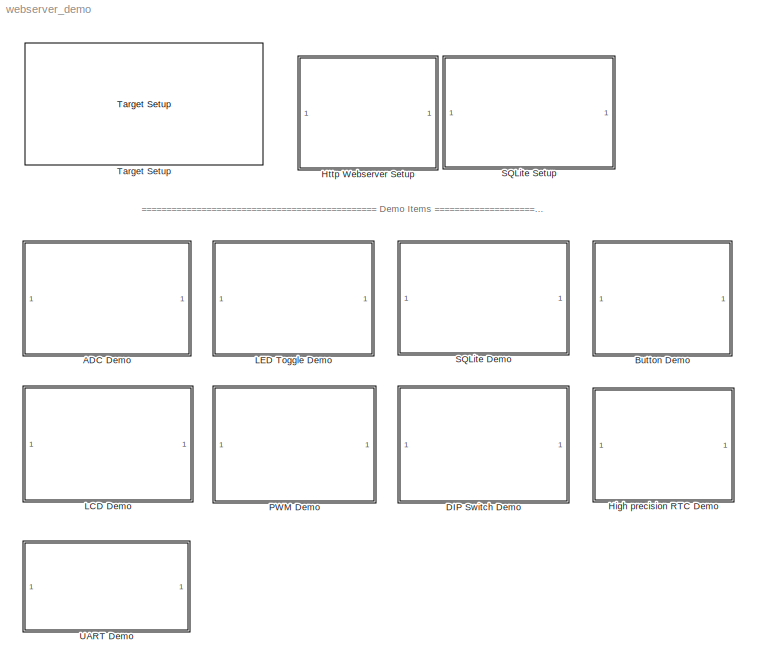
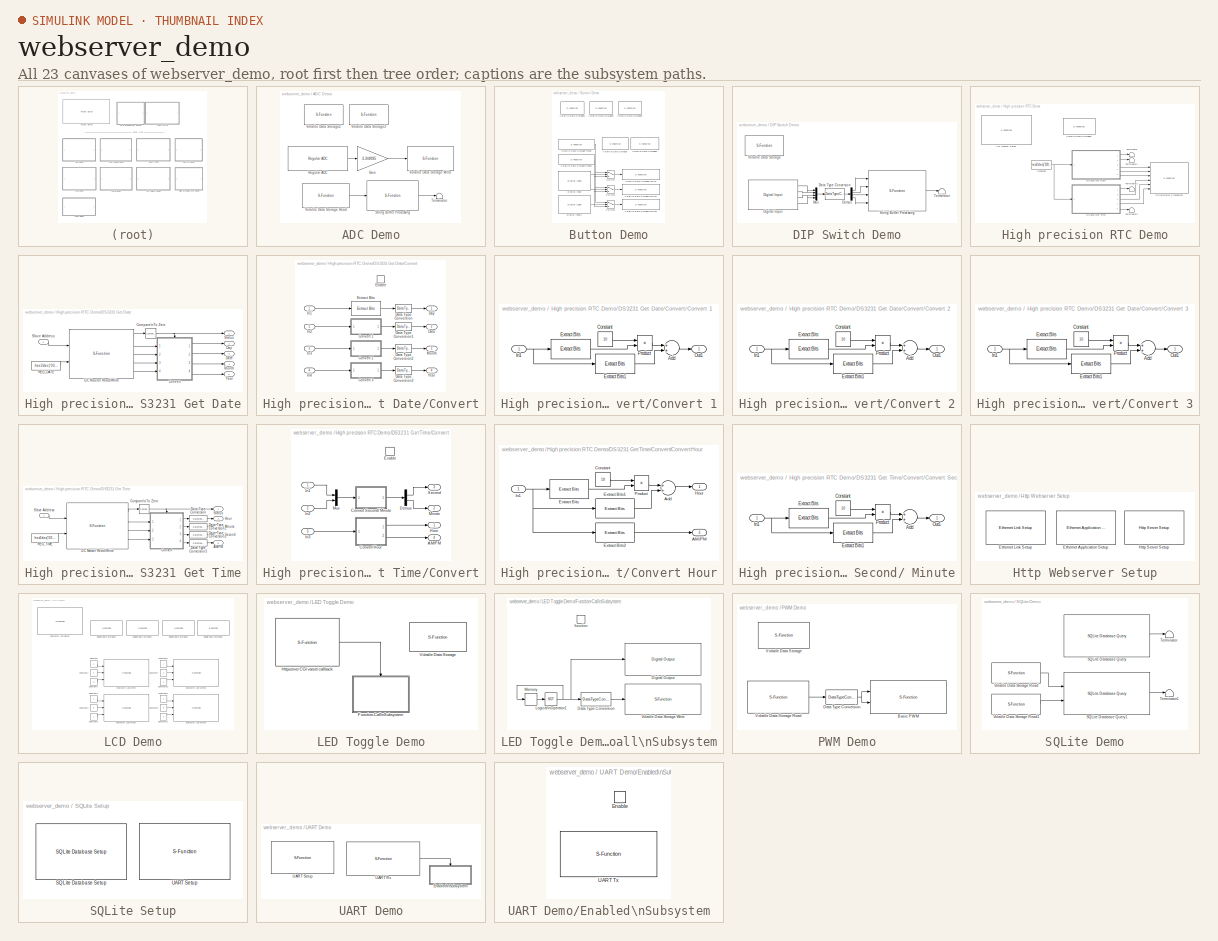
[diagram: thumbnail index - all 23 canvases of the model, root first then tree order]
MODEL webserver_demo
KIND model
CONFIG PreLoadFcn = waijung.modelPreload; % Required for working with Waijung Blockset. Do not remove.
BLOCK [SubSystem] ADC Demo
  FunctionWithSeparateData = off
  MaskHideContents = off
  MinAlgLoopOccurrences = off
  Opaque = off
  Ports = []
  PropExecContextOutsideSubsystem = off
  RTWSystemCode = Auto
  RequestExecContextInheritance = off
BLOCK [Gain] ADC Demo/Gain
  Gain = 3.3/4095
  OutDataType = fixdt(1, 16)
  OutDataTypeMode = single
  OutDataTypeStr = single
  OutScaling = 2^0
  ParamDataTypeStr = single
  ParameterDataType = fixdt(1, 16)
  ParameterDataTypeMode = single
  ParameterScaling = 2^0
  SaturateOnIntegerOverflow = off
BLOCK [Reference] ADC Demo/Regular ADC  REF=stm32f4_adc_lib/Regular ADC
  Ports = [0, 1]
  SourceBlock = stm32f4_adc_lib/Regular ADC
  SourceType = stm32f4_regular_adc
  adcmodule = 1
  blockid = ADCDemoRegularADC
  chsamplingtime = Auto
  chsamplingtimestr = ADC_SampleTime_480Cycles
  cinputportlabel = 0
  coutputportlabel = Out1, Out2
  enablecustomportlabel = off
  outputdatatype = Single
  pinstr = GPIO_Pin_10
  prescaler = 2
  prescalerstr = ADC_Prescaler_Div2
  read_an0 = off
  read_an1 = off
  read_an10 = on
  read_an11 = off
  read_an12 = off
  read_an13 = off
  read_an14 = off
  read_an15 = off
  read_an16 = off
  read_an17 = off
  read_an18 = off
  read_an2 = off
  read_an3 = off
  read_an4 = off
  read_an5 = off
  read_an6 = off
  read_an7 = off
  read_an8 = off
  read_an9 = off
  sampletime = 0.01
  usedpinarray = [0  0  0  0  0  0  0  0  0  0  1  0  0  0  0  0  0  0  0]
  usedpinidarray = [0]
  usedpinidcount = 1
  usedportidarray = [2]
BLOCK [S-Function] ADC Demo/String Buffer Processing
  EnableBusSupport = off
  FunctionName = waijung_stringbuffer_processing
  MaskCallbackString = waijung_stringbuffer_processing_callback('configuration');||waijung_stringbuffer_processing_callback('sformat');||||||waijung_stringbuffer_processing_callback('sampletime');|waijung_stringbuffer_processing_callback('sampletimestr');|waijung_stringbuffer_processing_callback('blockid');
  MaskDescription = This block implements string processing, sprintf/ sscanf command.
  MaskDisplay = text(0.5, 0.5, '[ sprintf ]\\nBuffer: adc_f\\nTs (sec): 0.001','ver','middle','hor','center');port_label('input', 1,'%f');port_label('output', 1,'Status');
  MaskEnableString = on,on,on,off,on,on,on,on,on,off,off
  MaskHelp = web(fullfile(waijungdocroot,'waijung_stringbuffer_processing.htm'))
  MaskIconFrame = on
  MaskIconOpaque = on
  MaskIconRotate = none
  MaskIconUnits = normalized
  MaskInitialization = waijung_stringbuffer_processing_callback('init');
  MaskPortRotate = default
  MaskPromptString = Function|String buffer|Printf format|Variable name|Input type array|Output type array|Port type list|Port type count|Sample time (sec)|Compiled sample time (sec) in string|BlockID
  MaskSelfModifiable = on
  MaskStyleString = popup(sprintf|sscanf),popup(adc_f|button_on|button_off|btn2|btn3|btn1|dip|datetime|lcd_line2|lcd_line3|lcd_line4|lcd_line1|<output>),edit,edit,edit,edit,edit,edit,edit,edit,edit
  MaskTabNameString = ,,,,,,,,,,
  MaskToolTipString = on,on,on,on,on,on,on,on,on,on,on
  MaskTunableValueString = on,off,off,off,off,off,off,off,off,off,off
  MaskType = waijung_stringbuffer_processing
  MaskValueString = sprintf|adc_f|'%1.2f'|ADCDemoVolatileDataStorage3_adc_f|[1 -1]|[1 3]|[\"float\"]|1|-1|0.001|ADCDemoStringBufferProcessing
  MaskVarAliasString = ,,,,,,,,,,
  MaskVariables = configuration=&1;storagename=&2;sformat=@3;varname=&4;inputtypearray=@5;outputtypearray=@6;porttypes=&7;portcount=@8;sampletime=@9;sampletimestr=&10;blockid=&11;
  MaskVisibilityString = on,on,on,off,off,off,off,off,on,off,off
  Parameters = configuration,varname,sformat,porttypes,portcount,inputtypearray,outputtypearray,sampletime,sampletimestr,blockid
  Ports = [1, 1]
BLOCK [Terminator] ADC Demo/Terminator
BLOCK [S-Function] ADC Demo/Volatile Data Storage Read
  EnableBusSupport = off
  FunctionName = waijung_vdata_read
  MaskCallbackString = waijung_vdata_read_callback('storagename');|waijung_vdata_read_callback('varname');|waijung_vdata_read_callback('sampletime');|waijung_vdata_read_callback('sampletimestr');|waijung_vdata_read_callback('blockid');|waijung_vdata_read_callback('storagetype');|  <repeated x6 — deduplicated; at blocks: Volatile Data Storage Read, Volatile Data Storage Read1>
  MaskDescription = This block implements read data from a buffer.
  MaskDisplay = text(0.05, 0.5, 'Buffer: adc','ver','middle','hor','left');port_label('output',1,'D1(single)')
  MaskEnableString = on,off,on,off,off,on,on
  MaskHelp = web(fullfile(waijungdocroot,'waijung_vdata_read.htm'))
  MaskIconFrame = on
  MaskIconOpaque = on
  MaskIconRotate = none
  MaskIconUnits = normalized
  MaskInitialization = waijung_vdata_read_callback('init');
  MaskPortRotate = default
  MaskPromptString = Storage Name|Variable name|Sample time (sec)|Compiled sample time (sec) in string|BlockID|Data type|Data type string
  MaskSelfModifiable = on
  MaskStyleString = popup(adc|adc_f|button_on|button_off|btn2|btn3|btn1|dip|datetime|lcd_line2|lcd_line3|lcd_line4|lcd_line1|led1|pwm),edit,edit,edit,edit,edit,edit
  MaskTabNameString = ,,,,,,
  MaskToolTipString = on,on,on,on,on,on,on
  MaskTunableValueString = off,off,off,off,off,off,off
  MaskType = waijung_vdata_read
  MaskValueString = adc|ADCDemoVolatileDataStorage2_adc|inf|0.001|ADCDemoVolatileDataStorageRead|single|float
  MaskVarAliasString = ,,,,,,
  MaskVariables = storagename=&1;varname=&2;sampletime=@3;sampletimestr=&4;blockid=&5;storagetype=&6;storagetypestr=&7;
  MaskVisibilityString = on,off,on,off,off,off,off
  Parameters = storagename,varname,sampletime,sampletimestr,blockid,storagetype,storagetypestr
  Ports = [0, 1]
BLOCK [S-Function] ADC Demo/Volatile Data Storage Write
  EnableBusSupport = off
  FunctionName = waijung_vdata_write
  MaskCallbackString = waijung_vdata_write_callback('storagename');|waijung_vdata_write_callback('varname');|waijung_vdata_write_callback('sampletime');|waijung_vdata_write_callback('sampletimestr');|waijung_vdata_write_callback('blockid');|waijung_vdata_write_callback('storagetype');|  <repeated x5 — deduplicated; at blocks: Volatile Data Storage Write, Volatile Data Storage Write1, Volatile Data Storage Write2>
  MaskDescription = This block implements write data to a buffer.
  MaskDisplay = text(0.95, 0.5, 'Buffer: adc','ver','middle','hor','right');port_label('input',1,'D1(single)')
  MaskEnableString = on,off,off,off,off,on,on
  MaskHelp = web(fullfile(waijungdocroot,'waijung_vdata_write.htm'))
  MaskIconFrame = on
  MaskIconOpaque = on
  MaskIconRotate = none
  MaskIconUnits = normalized
  MaskInitialization = waijung_vdata_write_callback('init');
  MaskPortRotate = default
  MaskPromptString = Storage Name|Variable name|Sample time (sec)|Compiled sample time (sec) in string|BlockID|Data type|Data type string
  MaskSelfModifiable = on
  MaskStyleString = popup(adc|adc_f|button_on|button_off|btn2|btn3|btn1|dip|datetime|lcd_line2|lcd_line3|lcd_line4|lcd_line1|led1|pwm),edit,edit,edit,edit,edit,edit
  MaskTabNameString = ,,,,,,
  MaskToolTipString = on,on,on,on,on,on,on
  MaskTunableValueString = off,off,off,off,off,off,off
  MaskType = waijung_vdata_write
  MaskValueString = adc|ADCDemoVolatileDataStorage2_adc|-1|0.01|ADCDemoVolatileDataStorageWrite|single|float
  MaskVarAliasString = ,,,,,,
  MaskVariables = storagename=&1;varname=&2;sampletime=@3;sampletimestr=&4;blockid=&5;storagetype=&6;storagetypestr=&7;
  MaskVisibilityString = on,off,on,off,off,off,off
  Parameters = storagename,varname,sampletime,sampletimestr,blockid,storagetype,storagetypestr
  Ports = [1]
BLOCK [S-Function] ADC Demo/Volatile Data Storage2
  EnableBusSupport = off
  FunctionName = waijung_vdata_storage
  MaskCallbackString = waijung_vdata_storage_callback('storagetype');|waijung_vdata_storage_callback('storagename');|waijung_vdata_storage_callback('initval');|waijung_vdata_storage_callback('varname');||waijung_vdata_storage_callback('initvalstring');|waijung_vdata_storage_callback('webintegration');|waijung_vdata_storage_callback('weboutputformat');||waijung_vdata_storage_callback('sampletime');|waijung_vdata_storage_...<+70ch>  <repeated x13 — deduplicated; at blocks: Volatile Data Storage2, Volatile Data Storage3, Volatile Data Storage5, Volatile Data Storage, Volatile Data Storage1, Volatile Data Storage4>
  MaskDescription = This block implements a volatile Data Storage.
  MaskDisplay = text(0.5, 0.5, 'Name: adc\\nType: single','ver','middle','hor','center')
  MaskEnableString = on,on,on,off,on,on,on,on,off,on,off,off,on
  MaskHelp = web(fullfile(waijungdocroot,'Volatile_Data_Storage.htm'))
  MaskIconFrame = on
  MaskIconOpaque = on
  MaskIconRotate = none
  MaskIconUnits = normalized
  MaskInitialization = waijung_vdata_storage_callback('init');
  MaskPortRotate = default
  MaskPromptString = Storage Type|Storage Name (must be a valid variable name)|Initial value (Apply at Power on Reset only)|Variable name|Size (bytes)|Initial value (Apply at Power on Reset only)|Web CGI varget/varset integration|Web CGI varget output format|Web CGI varset callback|Sample time (sec)|Compiled sample time (sec) in string|BlockID|Type string  <repeated x13 — deduplicated; at blocks: Volatile Data Storage2, Volatile Data Storage3, Volatile Data Storage5, Volatile Data Storage, Volatile Data Storage1, Volatile Data Storage4>
  MaskSelfModifiable = on
  MaskStyleString = popup(double|single|uint32|int32|uint16|int16|uint8|int8|string),edit,edit,edit,edit,edit,popup(Disable|ReadOnly|Write/ Read|ReadOnly with KeyValuePair|Write/ Read with KeyValuePair),edit,edit,edit,edit,edit,edit  <repeated x13 — deduplicated; at blocks: Volatile Data Storage2, Volatile Data Storage3, Volatile Data Storage5, Volatile Data Storage, Volatile Data Storage1, Volatile Data Storage4>
  MaskTabNameString = ,,,,,,,,,,,,
  MaskToolTipString = on,on,on,on,on,on,on,on,on,on,on,on,on
  MaskTunableValueString = off,off,off,off,off,off,off,off,off,off,off,off,off
  MaskType = waijung_vdata_storage
  MaskValueString = single|adc|0|ADCDemoVolatileDataStorage2_adc|64|'Initial string'|ReadOnly|'%1.2f'|(void*)0|-1|0.001|ADCDemoVolatileDataStorage2|float
  MaskVarAliasString = ,,,,,,,,,,,,
  MaskVariables = storagetype=&1;storagename=&2;initval=@3;varname=&4;buffersize=@5;initvalstring=@6;webintegration=&7;weboutputformat=&8;webcgicallback=&9;sampletime=@10;sampletimestr=&11;blockid=&12;storagetypestr=&13;  <repeated x13 — deduplicated; at blocks: Volatile Data Storage2, Volatile Data Storage3, Volatile Data Storage5, Volatile Data Storage, Volatile Data Storage1, Volatile Data Storage4>
  MaskVisibilityString = on,on,on,off,off,off,on,on,off,on,off,off,off
  Parameters = storagetype,storagename,initval,varname,buffersize,initvalstring,sampletime,sampletimestr,blockid,storagetypestr
  Ports = []
BLOCK [S-Function] ADC Demo/Volatile Data Storage3
  EnableBusSupport = off
  FunctionName = waijung_vdata_storage
  MaskDescription = This block implements a volatile Data Storage.
  MaskDisplay = text(0.5, 0.5, 'Name: adc_f\\nType: string','ver','middle','hor','center')
  MaskEnableString = on,on,on,off,on,on,on,on,off,on,off,off,on
  MaskHelp = web(fullfile(waijungdocroot,'Volatile_Data_Storage.htm'))
  MaskIconFrame = on
  MaskIconOpaque = on
  MaskIconRotate = none
  MaskIconUnits = normalized
  MaskInitialization = waijung_vdata_storage_callback('init');
  MaskPortRotate = default
  MaskSelfModifiable = on
  MaskTabNameString = ,,,,,,,,,,,,
  MaskToolTipString = on,on,on,on,on,on,on,on,on,on,on,on,on
  MaskTunableValueString = off,off,off,off,off,off,off,off,off,off,off,off,off
  MaskType = waijung_vdata_storage
  MaskValueString = string|adc_f|0|ADCDemoVolatileDataStorage3_adc_f|64|''|ReadOnly|'%s'|(void*)0|-1|0.001|ADCDemoVolatileDataStorage3|char
  MaskVarAliasString = ,,,,,,,,,,,,
  MaskVisibilityString = on,on,off,off,on,on,on,on,off,on,off,off,off
  Parameters = storagetype,storagename,initval,varname,buffersize,initvalstring,sampletime,sampletimestr,blockid,storagetypestr
  Ports = []
BLOCK [SubSystem] Button Demo
  FunctionWithSeparateData = off
  MaskHideContents = off
  MinAlgLoopOccurrences = off
  Opaque = off
  Ports = []
  PropExecContextOutsideSubsystem = off
  RTWSystemCode = Auto
  RequestExecContextInheritance = off
BLOCK [Reference] Button Demo/Digital Input  REF=stm32f4_io_lib/Digital Input
  Ports = [0, 2]
  SourceBlock = stm32f4_io_lib/Digital Input
  SourceType = stm32f4_digital_input
  bitbandingstr = \n#define ButtonDemoDigitalInput_B2 Peripheral_BB(GPIOB->IDR, 2)  /* Output pin */\n#define ButtonDemoDigitalInput_B15 Peripheral_BB(GPIOB->IDR, 15)  /* Output pin */
  blockid = ButtonDemoDigitalInput
  cinputportlabel = In1, In2
  coutputportlabel = Out1, Out2
  enablecustomportlabel = off
  glabalinit = off
  pinstr = GPIO_Pin_2 | GPIO_Pin_15
  port = B
  porttype = None
  porttypestr = NOPULL
  sampletime = 0.01
  sampletimestr = 0.01
  speed = 100
  use_pin0 = off
  use_pin1 = off
  use_pin10 = off
  use_pin11 = off
  use_pin12 = off
  use_pin13 = off
  use_pin14 = off
  use_pin15 = on
  use_pin2 = on
  use_pin3 = off
  use_pin4 = off
  use_pin5 = off
  use_pin6 = off
  use_pin7 = off
  use_pin8 = off
  use_pin9 = off
  usedpinarray = [0  0  1  0  0  0  0  0  0  0  0  0  0  0  0  1]
BLOCK [Reference] Button Demo/Digital Input1  REF=stm32f4_io_lib/Digital Input
  Ports = [0, 1]
  SourceBlock = stm32f4_io_lib/Digital Input
  SourceType = stm32f4_digital_input
  bitbandingstr = \n#define ButtonDemoDigitalInput1_D7 Peripheral_BB(GPIOD->IDR, 7)  /* Output pin */
  blockid = ButtonDemoDigitalInput1
  cinputportlabel = In1, In2
  coutputportlabel = Out1, Out2
  enablecustomportlabel = off
  glabalinit = off
  pinstr = GPIO_Pin_7
  port = D
  porttype = None
  porttypestr = NOPULL
  sampletime = 0.01
  sampletimestr = 0.01
  speed = 100
  use_pin0 = off
  use_pin1 = off
  use_pin10 = off
  use_pin11 = off
  use_pin12 = off
  use_pin13 = off
  use_pin14 = off
  use_pin15 = off
  use_pin2 = off
  use_pin3 = off
  use_pin4 = off
  use_pin5 = off
  use_pin6 = off
  use_pin7 = on
  use_pin8 = off
  use_pin9 = off
  usedpinarray = [0  0  0  0  0  0  0  1  0  0  0  0  0  0  0  0]
BLOCK [Switch] Button Demo/Switch
  Criteria = u2 ~= 0
  InputSameDT = off
  OutDataType = fixdt(1, 16)
  OutScaling = 2^0
  SaturateOnIntegerOverflow = off
BLOCK [Switch] Button Demo/Switch1
  Criteria = u2 ~= 0
  InputSameDT = off
  OutDataType = fixdt(1, 16)
  OutScaling = 2^0
  SaturateOnIntegerOverflow = off
BLOCK [Switch] Button Demo/Switch2
  Criteria = u2 ~= 0
  InputSameDT = off
  OutDataType = fixdt(1, 16)
  OutScaling = 2^0
  SaturateOnIntegerOverflow = off
BLOCK [S-Function] Button Demo/Volatile Data Storage
  EnableBusSupport = off
  FunctionName = waijung_vdata_storage
  MaskCallbackString = waijung_vdata_storage_callback('storagetype');|waijung_vdata_storage_callback('storagename');|waijung_vdata_storage_callback('initval');|waijung_vdata_storage_callback('varname');||waijung_vdata_storage_callback('initvalstring');|waijung_vdata_storage_callback('sampletime');|waijung_vdata_storage_callback('sampletimestr');|waijung_vdata_storage_callback('blockid');|
  MaskDescription = This block implements a non volatile Data Storage.
  MaskDisplay = text(0.5, 0.5, '! Out of date','ver','middle','hor','center')
  MaskEnableString = on,on,on,off,on,on,on,off,off,on
  MaskHelp = web(fullfile(waijungdocroot,'waijung_vdata_storage.htm'))
  MaskIconFrame = on
  MaskIconOpaque = on
  MaskIconRotate = none
  MaskIconUnits = normalized
  MaskInitialization = waijung_vdata_storage_callback('init');
  MaskPortRotate = default
  MaskPromptString = Storage Type|Storage Name (must be a valid variable name)|Initial value (Apply at Power on Reset only)|Variable name|Size (bytes)|Initial value (Apply at Power on Reset only)|Sample time (sec)|Compiled sample time (sec) in string|BlockID|Type string
  MaskSelfModifiable = on
  MaskStyleString = popup(double|single|uint32|int32|uint16|int16|uint8|int8|string),edit,edit,edit,edit,edit,edit,edit,edit,edit
  MaskTabNameString = ,,,,,,,,,
  MaskToolTipString = on,on,on,on,on,on,on,on,on,on
  MaskTunableValueString = off,off,off,off,off,off,off,off,off,off
  MaskType = waijung_vdata_storage
  MaskValueString = string|button_on|0|ButtonDemoVolatileDataStorage_button_on|4|'ON'|-1|0.001|ButtonDemoVolatileDataStorage|char
  MaskVarAliasString = ,,,,,,,,,
  MaskVariables = storagetype=&1;storagename=&2;initval=@3;varname=&4;buffersize=@5;initvalstring=@6;sampletime=@7;sampletimestr=&8;blockid=&9;storagetypestr=&10;
  MaskVisibilityString = on,on,off,off,on,on,on,off,off,off
  Parameters = storagetype,storagename,initval,varname,buffersize,initvalstring,sampletime,sampletimestr,blockid,storagetypestr
  Ports = []
BLOCK [S-Function] Button Demo/Volatile Data Storage Read
  EnableBusSupport = off
  FunctionName = waijung_vdata_read
  MaskDescription = This block implements read data from a buffer.
  MaskDisplay = text(0.05, 0.5, 'Buffer: button_on','ver','middle','hor','left');port_label('output',1,'D1(string)')
  MaskEnableString = on,off,on,off,off,on,on
  MaskHelp = web(fullfile(waijungdocroot,'waijung_vdata_read.htm'))
  MaskIconFrame = on
  MaskIconOpaque = on
  MaskIconRotate = none
  MaskIconUnits = normalized
  MaskInitialization = waijung_vdata_read_callback('init');
  MaskPortRotate = default
  MaskPromptString = Storage Name|Variable name|Sample time (sec)|Compiled sample time (sec) in string|BlockID|Data type|Data type string
  MaskSelfModifiable = on
  MaskStyleString = popup(adc|adc_f|button_on|button_off|btn2|btn3|btn1|dip|datetime|lcd_line2|lcd_line3|lcd_line4|lcd_line1|led1|pwm),edit,edit,edit,edit,edit,edit
  MaskTabNameString = ,,,,,,
  MaskToolTipString = on,on,on,on,on,on,on
  MaskTunableValueString = off,off,off,off,off,off,off
  MaskType = waijung_vdata_read
  MaskValueString = button_on|ButtonDemoVolatileDataStorage_button_on|inf|0.01|ButtonDemoVolatileDataStorageRead|string|uint32_t
  MaskVarAliasString = ,,,,,,
  MaskVariables = storagename=&1;varname=&2;sampletime=@3;sampletimestr=&4;blockid=&5;storagetype=&6;storagetypestr=&7;
  MaskVisibilityString = on,off,on,off,off,off,off
  Parameters = storagename,varname,sampletime,sampletimestr,blockid,storagetype,storagetypestr
  Ports = [0, 1]
BLOCK [S-Function] Button Demo/Volatile Data Storage Read1
  EnableBusSupport = off
  FunctionName = waijung_vdata_read
  MaskDescription = This block implements read data from a buffer.
  MaskDisplay = text(0.05, 0.5, 'Buffer: button_off','ver','middle','hor','left');port_label('output',1,'D1(string)')
  MaskEnableString = on,off,on,off,off,on,on
  MaskHelp = web(fullfile(waijungdocroot,'waijung_vdata_read.htm'))
  MaskIconFrame = on
  MaskIconOpaque = on
  MaskIconRotate = none
  MaskIconUnits = normalized
  MaskInitialization = waijung_vdata_read_callback('init');
  MaskPortRotate = default
  MaskPromptString = Storage Name|Variable name|Sample time (sec)|Compiled sample time (sec) in string|BlockID|Data type|Data type string
  MaskSelfModifiable = on
  MaskStyleString = popup(adc|adc_f|button_on|button_off|btn2|btn3|btn1|dip|datetime|lcd_line2|lcd_line3|lcd_line4|lcd_line1|led1|pwm),edit,edit,edit,edit,edit,edit
  MaskTabNameString = ,,,,,,
  MaskToolTipString = on,on,on,on,on,on,on
  MaskTunableValueString = off,off,off,off,off,off,off
  MaskType = waijung_vdata_read
  MaskValueString = button_off|ButtonDemoVolatileDataStorage1_button_off|inf|0.01|ButtonDemoVolatileDataStorageRead1|string|uint32_t
  MaskVarAliasString = ,,,,,,
  MaskVariables = storagename=&1;varname=&2;sampletime=@3;sampletimestr=&4;blockid=&5;storagetype=&6;storagetypestr=&7;
  MaskVisibilityString = on,off,on,off,off,off,off
  Parameters = storagename,varname,sampletime,sampletimestr,blockid,storagetype,storagetypestr
  Ports = [0, 1]
BLOCK [S-Function] Button Demo/Volatile Data Storage Write
  EnableBusSupport = off
  FunctionName = waijung_vdata_write
  MaskDescription = This block implements write data to a buffer.
  MaskDisplay = text(0.95, 0.5, 'Buffer: btn1','ver','middle','hor','right');port_label('input',1,'D1(string)')
  MaskEnableString = on,off,off,off,off,on,on
  MaskHelp = web(fullfile(waijungdocroot,'waijung_vdata_write.htm'))
  MaskIconFrame = on
  MaskIconOpaque = on
  MaskIconRotate = none
  MaskIconUnits = normalized
  MaskInitialization = waijung_vdata_write_callback('init');
  MaskPortRotate = default
  MaskPromptString = Storage Name|Variable name|Sample time (sec)|Compiled sample time (sec) in string|BlockID|Data type|Data type string
  MaskSelfModifiable = on
  MaskStyleString = popup(adc|adc_f|button_on|button_off|btn2|btn3|btn1|dip|datetime|lcd_line2|lcd_line3|lcd_line4|lcd_line1|led1|pwm),edit,edit,edit,edit,edit,edit
  MaskTabNameString = ,,,,,,
  MaskToolTipString = on,on,on,on,on,on,on
  MaskTunableValueString = off,off,off,off,off,off,off
  MaskType = waijung_vdata_write
  MaskValueString = btn1|ButtonDemoVolatileDataStorage5_btn1|-1|0.01|ButtonDemoVolatileDataStorageWrite|string|char*
  MaskVarAliasString = ,,,,,,
  MaskVariables = storagename=&1;varname=&2;sampletime=@3;sampletimestr=&4;blockid=&5;storagetype=&6;storagetypestr=&7;
  MaskVisibilityString = on,off,on,off,off,off,off
  Parameters = storagename,varname,sampletime,sampletimestr,blockid,storagetype,storagetypestr
  Ports = [1]
BLOCK [S-Function] Button Demo/Volatile Data Storage Write1
  EnableBusSupport = off
  FunctionName = waijung_vdata_write
  MaskDescription = This block implements write data to a buffer.
  MaskDisplay = text(0.95, 0.5, 'Buffer: btn2','ver','middle','hor','right');port_label('input',1,'D1(string)')
  MaskEnableString = on,off,off,off,off,on,on
  MaskHelp = web(fullfile(waijungdocroot,'waijung_vdata_write.htm'))
  MaskIconFrame = on
  MaskIconOpaque = on
  MaskIconRotate = none
  MaskIconUnits = normalized
  MaskInitialization = waijung_vdata_write_callback('init');
  MaskPortRotate = default
  MaskPromptString = Storage Name|Variable name|Sample time (sec)|Compiled sample time (sec) in string|BlockID|Data type|Data type string
  MaskSelfModifiable = on
  MaskStyleString = popup(adc|adc_f|button_on|button_off|btn2|btn3|btn1|dip|datetime|lcd_line2|lcd_line3|lcd_line4|lcd_line1|led1|pwm),edit,edit,edit,edit,edit,edit
  MaskTabNameString = ,,,,,,
  MaskToolTipString = on,on,on,on,on,on,on
  MaskTunableValueString = off,off,off,off,off,off,off
  MaskType = waijung_vdata_write
  MaskValueString = btn2|ButtonDemoVolatileDataStorage2_btn2|-1|0.01|ButtonDemoVolatileDataStorageWrite1|string|char*
  MaskVarAliasString = ,,,,,,
  MaskVariables = storagename=&1;varname=&2;sampletime=@3;sampletimestr=&4;blockid=&5;storagetype=&6;storagetypestr=&7;
  MaskVisibilityString = on,off,on,off,off,off,off
  Parameters = storagename,varname,sampletime,sampletimestr,blockid,storagetype,storagetypestr
  Ports = [1]
BLOCK [S-Function] Button Demo/Volatile Data Storage Write2
  EnableBusSupport = off
  FunctionName = waijung_vdata_write
  MaskDescription = This block implements write data to a buffer.
  MaskDisplay = text(0.95, 0.5, 'Buffer: btn3','ver','middle','hor','right');port_label('input',1,'D1(string)')
  MaskEnableString = on,off,off,off,off,on,on
  MaskHelp = web(fullfile(waijungdocroot,'waijung_vdata_write.htm'))
  MaskIconFrame = on
  MaskIconOpaque = on
  MaskIconRotate = none
  MaskIconUnits = normalized
  MaskInitialization = waijung_vdata_write_callback('init');
  MaskPortRotate = default
  MaskPromptString = Storage Name|Variable name|Sample time (sec)|Compiled sample time (sec) in string|BlockID|Data type|Data type string
  MaskSelfModifiable = on
  MaskStyleString = popup(adc|adc_f|button_on|button_off|btn2|btn3|btn1|dip|datetime|lcd_line2|lcd_line3|lcd_line4|lcd_line1|led1|pwm),edit,edit,edit,edit,edit,edit
  MaskTabNameString = ,,,,,,
  MaskToolTipString = on,on,on,on,on,on,on
  MaskTunableValueString = off,off,off,off,off,off,off
  MaskType = waijung_vdata_write
  MaskValueString = btn3|ButtonDemoVolatileDataStorage3_btn3|-1|0.01|ButtonDemoVolatileDataStorageWrite2|string|char*
  MaskVarAliasString = ,,,,,,
  MaskVariables = storagename=&1;varname=&2;sampletime=@3;sampletimestr=&4;blockid=&5;storagetype=&6;storagetypestr=&7;
  MaskVisibilityString = on,off,on,off,off,off,off
  Parameters = storagename,varname,sampletime,sampletimestr,blockid,storagetype,storagetypestr
  Ports = [1]
BLOCK [S-Function] Button Demo/Volatile Data Storage1
  EnableBusSupport = off
  FunctionName = waijung_vdata_storage
  MaskCallbackString = waijung_vdata_storage_callback('storagetype');|waijung_vdata_storage_callback('storagename');|waijung_vdata_storage_callback('initval');|waijung_vdata_storage_callback('varname');||waijung_vdata_storage_callback('initvalstring');|waijung_vdata_storage_callback('sampletime');|waijung_vdata_storage_callback('sampletimestr');|waijung_vdata_storage_callback('blockid');|
  MaskDescription = This block implements a non volatile Data Storage.
  MaskDisplay = text(0.5, 0.5, '! Out of date','ver','middle','hor','center')
  MaskEnableString = on,on,on,off,on,on,on,off,off,on
  MaskHelp = web(fullfile(waijungdocroot,'waijung_vdata_storage.htm'))
  MaskIconFrame = on
  MaskIconOpaque = on
  MaskIconRotate = none
  MaskIconUnits = normalized
  MaskInitialization = waijung_vdata_storage_callback('init');
  MaskPortRotate = default
  MaskPromptString = Storage Type|Storage Name (must be a valid variable name)|Initial value (Apply at Power on Reset only)|Variable name|Size (bytes)|Initial value (Apply at Power on Reset only)|Sample time (sec)|Compiled sample time (sec) in string|BlockID|Type string
  MaskSelfModifiable = on
  MaskStyleString = popup(double|single|uint32|int32|uint16|int16|uint8|int8|string),edit,edit,edit,edit,edit,edit,edit,edit,edit
  MaskTabNameString = ,,,,,,,,,
  MaskToolTipString = on,on,on,on,on,on,on,on,on,on
  MaskTunableValueString = off,off,off,off,off,off,off,off,off,off
  MaskType = waijung_vdata_storage
  MaskValueString = string|button_off|0|ButtonDemoVolatileDataStorage1_button_off|4|'OFF'|-1|0.001|ButtonDemoVolatileDataStorage1|char
  MaskVarAliasString = ,,,,,,,,,
  MaskVariables = storagetype=&1;storagename=&2;initval=@3;varname=&4;buffersize=@5;initvalstring=@6;sampletime=@7;sampletimestr=&8;blockid=&9;storagetypestr=&10;
  MaskVisibilityString = on,on,off,off,on,on,on,off,off,off
  Parameters = storagetype,storagename,initval,varname,buffersize,initvalstring,sampletime,sampletimestr,blockid,storagetypestr
  Ports = []
BLOCK [S-Function] Button Demo/Volatile Data Storage2
  EnableBusSupport = off
  FunctionName = waijung_vdata_storage
  MaskDescription = This block implements a volatile Data Storage.
  MaskDisplay = text(0.5, 0.5, 'Name: btn2\\nType: string','ver','middle','hor','center')
  MaskEnableString = on,on,on,off,on,on,on,on,off,on,off,off,on
  MaskHelp = web(fullfile(waijungdocroot,'Volatile_Data_Storage.htm'))
  MaskIconFrame = on
  MaskIconOpaque = on
  MaskIconRotate = none
  MaskIconUnits = normalized
  MaskInitialization = waijung_vdata_storage_callback('init');
  MaskPortRotate = default
  MaskSelfModifiable = on
  MaskTabNameString = ,,,,,,,,,,,,
  MaskToolTipString = on,on,on,on,on,on,on,on,on,on,on,on,on
  MaskTunableValueString = off,off,off,off,off,off,off,off,off,off,off,off,off
  MaskType = waijung_vdata_storage
  MaskValueString = string|btn2|0|ButtonDemoVolatileDataStorage2_btn2|4|''|ReadOnly|'%s'|(void*)0|-1|0.001|ButtonDemoVolatileDataStorage2|char
  MaskVarAliasString = ,,,,,,,,,,,,
  MaskVisibilityString = on,on,off,off,on,on,on,on,off,on,off,off,off
  Parameters = storagetype,storagename,initval,varname,buffersize,initvalstring,sampletime,sampletimestr,blockid,storagetypestr
  Ports = []
BLOCK [S-Function] Button Demo/Volatile Data Storage3
  EnableBusSupport = off
  FunctionName = waijung_vdata_storage
  MaskDescription = This block implements a volatile Data Storage.
  MaskDisplay = text(0.5, 0.5, 'Name: btn3\\nType: string','ver','middle','hor','center')
  MaskEnableString = on,on,on,off,on,on,on,on,off,on,off,off,on
  MaskHelp = web(fullfile(waijungdocroot,'Volatile_Data_Storage.htm'))
  MaskIconFrame = on
  MaskIconOpaque = on
  MaskIconRotate = none
  MaskIconUnits = normalized
  MaskInitialization = waijung_vdata_storage_callback('init');
  MaskPortRotate = default
  MaskSelfModifiable = on
  MaskTabNameString = ,,,,,,,,,,,,
  MaskToolTipString = on,on,on,on,on,on,on,on,on,on,on,on,on
  MaskTunableValueString = off,off,off,off,off,off,off,off,off,off,off,off,off
  MaskType = waijung_vdata_storage
  MaskValueString = string|btn3|0|ButtonDemoVolatileDataStorage3_btn3|4|''|ReadOnly|'%s'|(void*)0|-1|0.001|ButtonDemoVolatileDataStorage3|char
  MaskVarAliasString = ,,,,,,,,,,,,
  MaskVisibilityString = on,on,off,off,on,on,on,on,off,on,off,off,off
  Parameters = storagetype,storagename,initval,varname,buffersize,initvalstring,sampletime,sampletimestr,blockid,storagetypestr
  Ports = []
BLOCK [S-Function] Button Demo/Volatile Data Storage5
  EnableBusSupport = off
  FunctionName = waijung_vdata_storage
  MaskDescription = This block implements a volatile Data Storage.
  MaskDisplay = text(0.5, 0.5, 'Name: btn1\\nType: string','ver','middle','hor','center')
  MaskEnableString = on,on,on,off,on,on,on,on,off,on,off,off,on
  MaskHelp = web(fullfile(waijungdocroot,'Volatile_Data_Storage.htm'))
  MaskIconFrame = on
  MaskIconOpaque = on
  MaskIconRotate = none
  MaskIconUnits = normalized
  MaskInitialization = waijung_vdata_storage_callback('init');
  MaskPortRotate = default
  MaskSelfModifiable = on
  MaskTabNameString = ,,,,,,,,,,,,
  MaskToolTipString = on,on,on,on,on,on,on,on,on,on,on,on,on
  MaskTunableValueString = off,off,off,off,off,off,off,off,off,off,off,off,off
  MaskType = waijung_vdata_storage
  MaskValueString = string|btn1|0|ButtonDemoVolatileDataStorage5_btn1|4|''|ReadOnly|'%s'|(void*)0|-1|0.001|ButtonDemoVolatileDataStorage5|char
  MaskVarAliasString = ,,,,,,,,,,,,
  MaskVisibilityString = on,on,off,off,on,on,on,on,off,on,off,off,off
  Parameters = storagetype,storagename,initval,varname,buffersize,initvalstring,sampletime,sampletimestr,blockid,storagetypestr
  Ports = []
BLOCK [SubSystem] DIP Switch Demo
  FunctionWithSeparateData = off
  MaskHideContents = off
  MinAlgLoopOccurrences = off
  Opaque = off
  Ports = []
  PropExecContextOutsideSubsystem = off
  RTWSystemCode = Auto
  RequestExecContextInheritance = off
BLOCK [DataTypeConversion] DIP Switch Demo/Data Type Conversion
  OutDataType = fixdt(1, 16)
  OutScaling = 2^0
  RndMeth = Floor
  SaturateOnIntegerOverflow = off
BLOCK [Demux] DIP Switch Demo/Demux
  DisplayOption = bar
  Ports = [1, 4]
BLOCK [Reference] DIP Switch Demo/Digital Input  REF=stm32f4_io_lib/Digital Input
  Ports = [0, 4]
  SourceBlock = stm32f4_io_lib/Digital Input
  SourceType = stm32f4_digital_input
  bitbandingstr = \n#define DIPSwitchDemoDigitalInput_E3 Peripheral_BB(GPIOE->IDR, 3)  /* Output pin */\n#define DIPSwitchDemoDigitalInput_E4 Peripheral_BB(GPIOE->IDR, 4)  /* Output pin */\n#define DIPSwitchDemoDigitalInput_E5 Peripheral_BB(GPIOE->IDR, 5)  /* Output pin */\n#define DIPSwitchDemoDigitalInput_E6 Peripheral_BB(GPIOE->IDR, 6)  /* Output pin */
  blockid = DIPSwitchDemoDigitalInput
  cinputportlabel = In1, In2
  coutputportlabel = Out1, Out2
  enablecustomportlabel = off
  glabalinit = off
  pinstr = GPIO_Pin_3 | GPIO_Pin_4 | GPIO_Pin_5 | GPIO_Pin_6
  port = E
  porttype = None
  porttypestr = NOPULL
  sampletime = 0.01
  sampletimestr = 0.01
  speed = 100
  use_pin0 = off
  use_pin1 = off
  use_pin10 = off
  use_pin11 = off
  use_pin12 = off
  use_pin13 = off
  use_pin14 = off
  use_pin15 = off
  use_pin2 = off
  use_pin3 = on
  use_pin4 = on
  use_pin5 = on
  use_pin6 = on
  use_pin7 = off
  use_pin8 = off
  use_pin9 = off
  usedpinarray = [0  0  0  1  1  1  1  0  0  0  0  0  0  0  0  0]
BLOCK [Mux] DIP Switch Demo/Mux
  DisplayOption = bar
  Ports = [4, 1]
BLOCK [S-Function] DIP Switch Demo/String Buffer Processing
  EnableBusSupport = off
  FunctionName = waijung_stringbuffer_processing
  MaskCallbackString = waijung_stringbuffer_processing_callback('configuration');||waijung_stringbuffer_processing_callback('sformat');||||||waijung_stringbuffer_processing_callback('sampletime');|waijung_stringbuffer_processing_callback('sampletimestr');|waijung_stringbuffer_processing_callback('blockid');
  MaskDescription = This block implements string processing, sprintf/ sscanf command.
  MaskDisplay = text(0.5, 0.5, '[ sprintf ]\\nBuffer: dip\\nTs (sec): 0.01','ver','middle','hor','center');port_label('input', 1,'%u');port_label('input', 2,'%u');port_label('input', 3,'%u');port_label('input', 4,'%u');port_label('output', 1,'Status');
  MaskEnableString = on,on,on,off,on,on,on,on,on,off,off
  MaskHelp = web(fullfile(waijungdocroot,'waijung_stringbuffer_processing.htm'))
  MaskIconFrame = on
  MaskIconOpaque = on
  MaskIconRotate = none
  MaskIconUnits = normalized
  MaskInitialization = waijung_stringbuffer_processing_callback('init');
  MaskPortRotate = default
  MaskPromptString = Function|String buffer|Printf format|Variable name|Input type array|Output type array|Port type list|Port type count|Sample time (sec)|Compiled sample time (sec) in string|BlockID
  MaskSelfModifiable = on
  MaskStyleString = popup(sprintf|sscanf),popup(adc_f|button_on|button_off|btn2|btn3|btn1|dip|datetime|lcd_line2|lcd_line3|lcd_line4|lcd_line1|<output>),edit,edit,edit,edit,edit,edit,edit,edit,edit
  MaskTabNameString = ,,,,,,,,,,
  MaskToolTipString = on,on,on,on,on,on,on,on,on,on,on
  MaskTunableValueString = on,off,off,off,off,off,off,off,off,off,off
  MaskType = waijung_stringbuffer_processing
  MaskValueString = sprintf|dip|'%u \\| %u \\| %u \\| %u'|DIPSwitchDemoVolatileDataStorage_dip|[4 -1 -1 -1 -1]|[1 3]|[\"uint32_t\",\"uint32_t\",\"uint32_t\",\"uint32_t\"]|4|-1|0.01|DIPSwitchDemoStringBufferProcessing
  MaskVarAliasString = ,,,,,,,,,,
  MaskVariables = configuration=&1;storagename=&2;sformat=@3;varname=&4;inputtypearray=@5;outputtypearray=@6;porttypes=&7;portcount=@8;sampletime=@9;sampletimestr=&10;blockid=&11;
  MaskVisibilityString = on,on,on,off,off,off,off,off,on,off,off
  Parameters = configuration,varname,sformat,porttypes,portcount,inputtypearray,outputtypearray,sampletime,sampletimestr,blockid
  Ports = [4, 1]
BLOCK [Terminator] DIP Switch Demo/Terminator
BLOCK [S-Function] DIP Switch Demo/Volatile Data Storage
  EnableBusSupport = off
  FunctionName = waijung_vdata_storage
  MaskDescription = This block implements a volatile Data Storage.
  MaskDisplay = text(0.5, 0.5, 'Name: dip\\nType: string','ver','middle','hor','center')
  MaskEnableString = on,on,on,off,on,on,on,on,off,on,off,off,on
  MaskHelp = web(fullfile(waijungdocroot,'Volatile_Data_Storage.htm'))
  MaskIconFrame = on
  MaskIconOpaque = on
  MaskIconRotate = none
  MaskIconUnits = normalized
  MaskInitialization = waijung_vdata_storage_callback('init');
  MaskPortRotate = default
  MaskSelfModifiable = on
  MaskTabNameString = ,,,,,,,,,,,,
  MaskToolTipString = on,on,on,on,on,on,on,on,on,on,on,on,on
  MaskTunableValueString = off,off,off,off,off,off,off,off,off,off,off,off,off
  MaskType = waijung_vdata_storage
  MaskValueString = string|dip|0|DIPSwitchDemoVolatileDataStorage_dip|64|''|Write/ Read|'%s'|(void*)0|-1|0.001|DIPSwitchDemoVolatileDataStorage|char
  MaskVarAliasString = ,,,,,,,,,,,,
  MaskVisibilityString = on,on,off,off,on,on,on,on,off,on,off,off,off
  Parameters = storagetype,storagename,initval,varname,buffersize,initvalstring,sampletime,sampletimestr,blockid,storagetypestr
  Ports = []
BLOCK [SubSystem] High precision RTC Demo
  FunctionWithSeparateData = off
  MaskHideContents = off
  MinAlgLoopOccurrences = off
  Opaque = off
  Ports = []
  PropExecContextOutsideSubsystem = off
  RTWSystemCode = Auto
  RequestExecContextInheritance = off
BLOCK [Constant] High precision RTC Demo/Constant
  OutDataType = fixdt(1, 16)
  OutDataTypeMode = uint8
  OutDataTypeStr = uint8
  OutScaling = 2^0
  SampleTime = 1
  Value = hex2dec('D0')
BLOCK [SubSystem] High precision RTC Demo/DS3231 Get Date
  FunctionWithSeparateData = off
  MaskCallbackString = |amg_high_precision_rtc_callback('module');
  MaskDisplay = text(0.5, 0.5, 'Port: I2C1','ver','middle','hor','center');port_label('input', 1,'SlvAddr');port_label('output', 1,'Status');port_label('output', 2,'Day(1-7)');port_label('output', 3,'Date(1-31)');port_label('output', 4,'Month(1-12)');port_label('output', 5,'Year(0-99)');
  MaskEnableString = on,on
  MaskHelp = web(fullfile(waijungdocroot,'DS3231_Get_Date.htm'), '-browser')
  MaskHideContents = off
  MaskIconFrame = on
  MaskIconOpaque = on
  MaskIconRotate = none
  MaskIconUnits = normalized
  MaskInitialization = amg_high_precision_rtc_callback('init');\n
  MaskPortRotate = default
  MaskPromptString = Function|I2C module
  MaskSelfModifiable = on
  MaskStyleString = popup(temp|time|date),popup(1|2|3)
  MaskTabNameString = ,
  MaskToolTipString = on,on
  MaskTunableValueString = on,on
  MaskValueString = date|1
  MaskVarAliasString = ,
  MaskVariables = blockfunction=@1;module=@2;
  MaskVisibilityString = off,on
  MinAlgLoopOccurrences = off
  Opaque = off
  Ports = [1, 5]
  PropExecContextOutsideSubsystem = off
  RTWSystemCode = Auto
  RequestExecContextInheritance = off
  ShowPortLabels = FromPortBlockName
BLOCK [Reference] High precision RTC Demo/DS3231 Get Date/Compare\nTo Zero  REF=simulink/Logic and Bit\nOperations/Compare\nTo Zero
  FunctionWithSeparateData = off
  LogicOutDataTypeMode = uint8
  Ports = [1, 1]
  RTWMemSecDataConstants = Inherit from model
  RTWMemSecDataInternal = Inherit from model
  RTWMemSecDataParameters = Inherit from model
  RTWMemSecFuncExecute = Inherit from model
  RTWMemSecFuncInitTerm = Inherit from model
  ShowPortLabels = FromPortIcon
  SourceBlock = simulink/Logic and Bit\nOperations/Compare\nTo Zero
  SourceType = Compare To Zero
  SystemSampleTime = -1
  ZeroCross = off
  relop = ==
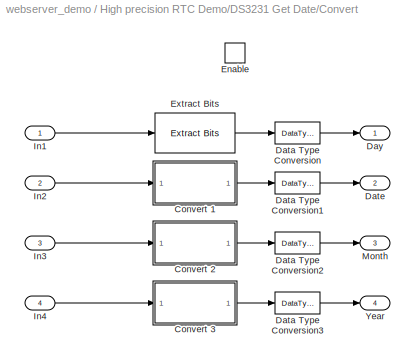
BLOCK [SubSystem] High precision RTC Demo/DS3231 Get Date/Convert
  FunctionWithSeparateData = off
  MaskHideContents = off
  MinAlgLoopOccurrences = off
  Opaque = off
  Ports = [4, 4, 1]
  PropExecContextOutsideSubsystem = off
  RTWSystemCode = Auto
  RequestExecContextInheritance = off
  TreatAsAtomicUnit = on
BLOCK [SubSystem] High precision RTC Demo/DS3231 Get Date/Convert/Convert 1
  FunctionWithSeparateData = off
  MaskHideContents = off
  MinAlgLoopOccurrences = off
  Opaque = off
  Ports = [1, 1]
  PropExecContextOutsideSubsystem = off
  RTWSystemCode = Auto
  RequestExecContextInheritance = off
BLOCK [Sum] High precision RTC Demo/DS3231 Get Date/Convert/Convert 1/Add
  InputSameDT = off
  OutDataType = fixdt(1, 16)
  OutDataTypeMode = Inherit via internal rule
  OutDataTypeStr = Inherit: Inherit via internal rule
  OutScaling = 2^-10
  Ports = [2, 1]
  SaturateOnIntegerOverflow = off
BLOCK [Constant] High precision RTC Demo/DS3231 Get Date/Convert/Convert 1/Constant
  OutDataType = fixdt(1, 16)
  OutDataTypeMode = uint8
  OutDataTypeStr = uint8
  OutScaling = 2^0
  Value = 10
BLOCK [Reference] High precision RTC Demo/DS3231 Get Date/Convert/Convert 1/Extract Bits  REF=simulink/Logic and Bit\nOperations/Extract Bits
  FunctionWithSeparateData = off
  Ports = [1, 1]
  RTWMemSecDataConstants = Inherit from model
  RTWMemSecDataInternal = Inherit from model
  RTWMemSecDataParameters = Inherit from model
  RTWMemSecFuncExecute = Inherit from model
  RTWMemSecFuncInitTerm = Inherit from model
  ShowPortLabels = FromPortIcon
  SourceBlock = simulink/Logic and Bit\nOperations/Extract Bits
  SourceType = Extract Bits
  SystemSampleTime = -1
  bitIdxRange = [4 5]
  bitsToExtract = Range of bits
  numBits = 8
  outScalingMode = Treat bit field as an integer
BLOCK [Reference] High precision RTC Demo/DS3231 Get Date/Convert/Convert 1/Extract Bits1  REF=simulink/Logic and Bit\nOperations/Extract Bits
  FunctionWithSeparateData = off
  Ports = [1, 1]
  RTWMemSecDataConstants = Inherit from model
  RTWMemSecDataInternal = Inherit from model
  RTWMemSecDataParameters = Inherit from model
  RTWMemSecFuncExecute = Inherit from model
  RTWMemSecFuncInitTerm = Inherit from model
  ShowPortLabels = FromPortIcon
  SourceBlock = simulink/Logic and Bit\nOperations/Extract Bits
  SourceType = Extract Bits
  SystemSampleTime = -1
  bitIdxRange = [0 3]
  bitsToExtract = Range of bits
  numBits = 8
  outScalingMode = Treat bit field as an integer
BLOCK [Inport] High precision RTC Demo/DS3231 Get Date/Convert/Convert 1/In1
  IconDisplay = Port number
BLOCK [Outport] High precision RTC Demo/DS3231 Get Date/Convert/Convert 1/Out1
  IconDisplay = Port number
BLOCK [Product] High precision RTC Demo/DS3231 Get Date/Convert/Convert 1/Product
  InputSameDT = off
  OutDataType = fixdt(1, 16)
  OutDataTypeMode = Inherit via internal rule
  OutDataTypeStr = Inherit: Inherit via internal rule
  OutScaling = 2^0
  Ports = [2, 1]
  SaturateOnIntegerOverflow = off
BLOCK [SubSystem] High precision RTC Demo/DS3231 Get Date/Convert/Convert 2
  FunctionWithSeparateData = off
  MaskHideContents = off
  MinAlgLoopOccurrences = off
  Opaque = off
  Ports = [1, 1]
  PropExecContextOutsideSubsystem = off
  RTWSystemCode = Auto
  RequestExecContextInheritance = off
BLOCK [Sum] High precision RTC Demo/DS3231 Get Date/Convert/Convert 2/Add
  InputSameDT = off
  OutDataType = fixdt(1, 16)
  OutDataTypeMode = Inherit via internal rule
  OutDataTypeStr = Inherit: Inherit via internal rule
  OutScaling = 2^-10
  Ports = [2, 1]
  SaturateOnIntegerOverflow = off
BLOCK [Constant] High precision RTC Demo/DS3231 Get Date/Convert/Convert 2/Constant
  OutDataType = fixdt(1, 16)
  OutDataTypeMode = uint8
  OutDataTypeStr = uint8
  OutScaling = 2^0
  Value = 10
BLOCK [Reference] High precision RTC Demo/DS3231 Get Date/Convert/Convert 2/Extract Bits  REF=simulink/Logic and Bit\nOperations/Extract Bits
  FunctionWithSeparateData = off
  Ports = [1, 1]
  RTWMemSecDataConstants = Inherit from model
  RTWMemSecDataInternal = Inherit from model
  RTWMemSecDataParameters = Inherit from model
  RTWMemSecFuncExecute = Inherit from model
  RTWMemSecFuncInitTerm = Inherit from model
  ShowPortLabels = FromPortIcon
  SourceBlock = simulink/Logic and Bit\nOperations/Extract Bits
  SourceType = Extract Bits
  SystemSampleTime = -1
  bitIdxRange = [4 4]
  bitsToExtract = Range of bits
  numBits = 8
  outScalingMode = Treat bit field as an integer
BLOCK [Reference] High precision RTC Demo/DS3231 Get Date/Convert/Convert 2/Extract Bits1  REF=simulink/Logic and Bit\nOperations/Extract Bits
  FunctionWithSeparateData = off
  Ports = [1, 1]
  RTWMemSecDataConstants = Inherit from model
  RTWMemSecDataInternal = Inherit from model
  RTWMemSecDataParameters = Inherit from model
  RTWMemSecFuncExecute = Inherit from model
  RTWMemSecFuncInitTerm = Inherit from model
  ShowPortLabels = FromPortIcon
  SourceBlock = simulink/Logic and Bit\nOperations/Extract Bits
  SourceType = Extract Bits
  SystemSampleTime = -1
  bitIdxRange = [0 3]
  bitsToExtract = Range of bits
  numBits = 8
  outScalingMode = Treat bit field as an integer
BLOCK [Inport] High precision RTC Demo/DS3231 Get Date/Convert/Convert 2/In1
  IconDisplay = Port number
BLOCK [Outport] High precision RTC Demo/DS3231 Get Date/Convert/Convert 2/Out1
  IconDisplay = Port number
BLOCK [Product] High precision RTC Demo/DS3231 Get Date/Convert/Convert 2/Product
  InputSameDT = off
  OutDataType = fixdt(1, 16)
  OutDataTypeMode = Inherit via internal rule
  OutDataTypeStr = Inherit: Inherit via internal rule
  OutScaling = 2^0
  Ports = [2, 1]
  SaturateOnIntegerOverflow = off
BLOCK [SubSystem] High precision RTC Demo/DS3231 Get Date/Convert/Convert 3
  FunctionWithSeparateData = off
  MaskHideContents = off
  MinAlgLoopOccurrences = off
  Opaque = off
  Ports = [1, 1]
  PropExecContextOutsideSubsystem = off
  RTWSystemCode = Auto
  RequestExecContextInheritance = off
BLOCK [Sum] High precision RTC Demo/DS3231 Get Date/Convert/Convert 3/Add
  InputSameDT = off
  OutDataType = fixdt(1, 16)
  OutDataTypeMode = Inherit via internal rule
  OutDataTypeStr = Inherit: Inherit via internal rule
  OutScaling = 2^-10
  Ports = [2, 1]
  SaturateOnIntegerOverflow = off
BLOCK [Constant] High precision RTC Demo/DS3231 Get Date/Convert/Convert 3/Constant
  OutDataType = fixdt(1, 16)
  OutDataTypeMode = uint8
  OutDataTypeStr = uint8
  OutScaling = 2^0
  Value = 10
BLOCK [Reference] High precision RTC Demo/DS3231 Get Date/Convert/Convert 3/Extract Bits  REF=simulink/Logic and Bit\nOperations/Extract Bits
  FunctionWithSeparateData = off
  Ports = [1, 1]
  RTWMemSecDataConstants = Inherit from model
  RTWMemSecDataInternal = Inherit from model
  RTWMemSecDataParameters = Inherit from model
  RTWMemSecFuncExecute = Inherit from model
  RTWMemSecFuncInitTerm = Inherit from model
  ShowPortLabels = FromPortIcon
  SourceBlock = simulink/Logic and Bit\nOperations/Extract Bits
  SourceType = Extract Bits
  SystemSampleTime = -1
  bitIdxRange = [4 7]
  bitsToExtract = Range of bits
  numBits = 8
  outScalingMode = Treat bit field as an integer
BLOCK [Reference] High precision RTC Demo/DS3231 Get Date/Convert/Convert 3/Extract Bits1  REF=simulink/Logic and Bit\nOperations/Extract Bits
  FunctionWithSeparateData = off
  Ports = [1, 1]
  RTWMemSecDataConstants = Inherit from model
  RTWMemSecDataInternal = Inherit from model
  RTWMemSecDataParameters = Inherit from model
  RTWMemSecFuncExecute = Inherit from model
  RTWMemSecFuncInitTerm = Inherit from model
  ShowPortLabels = FromPortIcon
  SourceBlock = simulink/Logic and Bit\nOperations/Extract Bits
  SourceType = Extract Bits
  SystemSampleTime = -1
  bitIdxRange = [0 3]
  bitsToExtract = Range of bits
  numBits = 8
  outScalingMode = Treat bit field as an integer
BLOCK [Inport] High precision RTC Demo/DS3231 Get Date/Convert/Convert 3/In1
  IconDisplay = Port number
BLOCK [Outport] High precision RTC Demo/DS3231 Get Date/Convert/Convert 3/Out1
  IconDisplay = Port number
BLOCK [Product] High precision RTC Demo/DS3231 Get Date/Convert/Convert 3/Product
  InputSameDT = off
  OutDataType = fixdt(1, 16)
  OutDataTypeMode = Inherit via internal rule
  OutDataTypeStr = Inherit: Inherit via internal rule
  OutScaling = 2^0
  Ports = [2, 1]
  SaturateOnIntegerOverflow = off
BLOCK [DataTypeConversion] High precision RTC Demo/DS3231 Get Date/Convert/Data Type Conversion
  OutDataType = fixdt(1, 16)
  OutDataTypeMode = uint8
  OutDataTypeStr = uint8
  OutScaling = 2^0
  RndMeth = Floor
  SaturateOnIntegerOverflow = off
BLOCK [DataTypeConversion] High precision RTC Demo/DS3231 Get Date/Convert/Data Type Conversion1
  OutDataType = fixdt(1, 16)
  OutDataTypeMode = uint8
  OutDataTypeStr = uint8
  OutScaling = 2^0
  RndMeth = Floor
  SaturateOnIntegerOverflow = off
BLOCK [DataTypeConversion] High precision RTC Demo/DS3231 Get Date/Convert/Data Type Conversion2
  OutDataType = fixdt(1, 16)
  OutDataTypeMode = uint8
  OutDataTypeStr = uint8
  OutScaling = 2^0
  RndMeth = Floor
  SaturateOnIntegerOverflow = off
BLOCK [DataTypeConversion] High precision RTC Demo/DS3231 Get Date/Convert/Data Type Conversion3
  OutDataType = fixdt(1, 16)
  OutDataTypeMode = uint8
  OutDataTypeStr = uint8
  OutScaling = 2^0
  RndMeth = Floor
  SaturateOnIntegerOverflow = off
BLOCK [Outport] High precision RTC Demo/DS3231 Get Date/Convert/Date
  IconDisplay = Port number
  OutDataType = fixdt(1, 16)
  OutScaling = 2^0
  Port = 2
BLOCK [Outport] High precision RTC Demo/DS3231 Get Date/Convert/Day
  IconDisplay = Port number
  OutDataType = fixdt(1, 16)
  OutScaling = 2^0
BLOCK [EnablePort] High precision RTC Demo/DS3231 Get Date/Convert/Enable
  Ports = []
BLOCK [Reference] High precision RTC Demo/DS3231 Get Date/Convert/Extract Bits  REF=simulink/Logic and Bit\nOperations/Extract Bits
  FunctionWithSeparateData = off
  Ports = [1, 1]
  RTWMemSecDataConstants = Inherit from model
  RTWMemSecDataInternal = Inherit from model
  RTWMemSecDataParameters = Inherit from model
  RTWMemSecFuncExecute = Inherit from model
  RTWMemSecFuncInitTerm = Inherit from model
  ShowPortLabels = FromPortIcon
  SourceBlock = simulink/Logic and Bit\nOperations/Extract Bits
  SourceType = Extract Bits
  SystemSampleTime = -1
  bitIdxRange = [0 3]
  bitsToExtract = Range of bits
  numBits = 8
  outScalingMode = Treat bit field as an integer
BLOCK [Inport] High precision RTC Demo/DS3231 Get Date/Convert/In1
  IconDisplay = Port number
  OutDataType = fixdt(1, 16)
  OutScaling = 2^0
BLOCK [Inport] High precision RTC Demo/DS3231 Get Date/Convert/In2
  IconDisplay = Port number
  OutDataType = fixdt(1, 16)
  OutScaling = 2^0
  Port = 2
BLOCK [Inport] High precision RTC Demo/DS3231 Get Date/Convert/In3
  IconDisplay = Port number
  OutDataType = fixdt(1, 16)
  OutScaling = 2^0
  Port = 3
BLOCK [Inport] High precision RTC Demo/DS3231 Get Date/Convert/In4
  IconDisplay = Port number
  OutDataType = fixdt(1, 16)
  OutScaling = 2^0
  Port = 4
BLOCK [Outport] High precision RTC Demo/DS3231 Get Date/Convert/Month
  IconDisplay = Port number
  OutDataType = fixdt(1, 16)
  OutScaling = 2^0
  Port = 3
BLOCK [Outport] High precision RTC Demo/DS3231 Get Date/Convert/Year
  IconDisplay = Port number
  OutDataType = fixdt(1, 16)
  OutScaling = 2^0
  Port = 4
BLOCK [Outport] High precision RTC Demo/DS3231 Get Date/Date
  IconDisplay = Port number
  Port = 3
BLOCK [Outport] High precision RTC Demo/DS3231 Get Date/Day
  IconDisplay = Port number
  Port = 2
BLOCK [S-Function] High precision RTC Demo/DS3231 Get Date/I2C Master Read//Write
  EnableBusSupport = off
  FunctionName = stm32f4_i2c
  MaskCallbackString = stm32f4_i2c_callback('configuration');|stm32f4_i2c_callback('module');|||stm32f4_i2c_callback('dutycycle');|||stm32f4_i2c_callback('writecount');|stm32f4_i2c_callback('readcount');|stm32f4_i2c_callback('sdapin');|stm32f4_i2c_callback('sclpin');||||stm32f4_i2c_callback('confstr');|stm32f4_i2c_callback('sampletime');|stm32f4_i2c_callback('sampletimestr');|stm32f4_i2c_callback('blockid');  <repeated x3 — deduplicated; at blocks: I2C Master Read/Write, I2C Master Setup>
  MaskDisplay = text(0.5, 0.5, 'Module: I2C1\\nTransfer: Blocking\\nWrite: 1 bytes\\nRead: 4 bytes\\nTs (sec): 1','ver','middle','hor','center');port_label('input', 1,'SlvAddr');port_label('input', 2,'Wr0 (uint8)');port_label('output', 1,'Status');port_label('output', 2,'Rd0 (uint8)');port_label('output', 3,'Rd1 (uint8)');port_label('output', 4,'Rd2 (uint8)');port_label('output', 5,'Rd3 (uint8)');
  MaskEnableString = off,on,off,off,on,on,on,on,on,on,on,on,off,off,off,on,on,on
  MaskHelp = web(fullfile(waijungdocroot,'stm32f4_i2c_readwrite.htm'), '-browser')
  MaskIconFrame = on
  MaskIconOpaque = on
  MaskIconRotate = none
  MaskIconUnits = normalized
  MaskInitialization = stm32f4_i2c_callback('init');
  MaskPortRotate = default
  MaskPromptString = Configuration|I2C Module|Last module|Transfer mode|Duty cycle in fast mode|Clock speed (kHz)|Timeout (ms)|Bytes write count|Bytes read count|SDA pin|SCL pin|Wait write time (ms), default is 0|Input type array|Output type array|Configuration string|Sample time (sec)|Compiled sample time (sec) in string|BlockID  <repeated x3 — deduplicated; at blocks: I2C Master Read/Write, I2C Master Setup>
  MaskSelfModifiable = on
  MaskStyleString = popup(Setup|Transaction),popup(1|2|3),edit,popup(Blocking|Non-blocking),popup(TLow/THigh = 16/9|TLow/THigh = 2),edit,edit,edit,edit,popup(-|C9),popup(-|A8),edit,edit,edit,edit,edit,edit,edit
  MaskTabNameString = ,,,,,,,,,,,,,,,,,
  MaskToolTipString = on,on,on,on,on,on,on,on,on,on,on,on,on,on,on,on,on,on
  MaskTunableValueString = off,off,off,off,off,off,off,off,off,off,off,off,off,off,off,off,off,off
  MaskType = stm32f4_i2c
  MaskValueString = Transaction|1|3|Blocking|TLow/THigh = 2|400|25|1|4|C9|A8|0|[2 3 3]|[5 3 3 3 3 3]|[\"C\",\"9\",\"A\",\"8\",\"1\",\"1\",\"6\",\"0\",\"I2C_DutyCycle_2\",\"0\",\"off\"]|-1|1|HighprecisionRTCDemoDS3231GetDateI2CMasterReadWrite
  MaskVarAliasString = ,,,,,,,,,,,,,,,,,
  MaskVariables = configuration=&1;module=&2;lastmodule=&3;transfer=&4;dutycycle=&5;clkspeed=@6;timeout=@7;writecount=@8;readcount=@9;sdapin=&10;sclpin=&11;waitwritetime=@12;inputtypearray=@13;outputtypearray=@14;confstr=&15;sampletime=@16;sampletimestr=&17;blockid=&18;  <repeated x3 — deduplicated; at blocks: I2C Master Read/Write, I2C Master Setup>
  MaskVisibilityString = off,on,off,off,off,off,off,on,on,off,off,on,off,off,off,on,off,off
  Parameters = configuration,module,transfer,clkspeed,timeout,sdapin,sclpin,writecount,readcount,inputtypearray,outputtypearray,confstr,sampletime,sampletimestr,blockid
  Ports = [2, 5]
BLOCK [Outport] High precision RTC Demo/DS3231 Get Date/Month
  IconDisplay = Port number
  Port = 4
BLOCK [Constant] High precision RTC Demo/DS3231 Get Date/REG_DATE
  OutDataType = fixdt(1, 16)
  OutDataTypeMode = uint8
  OutDataTypeStr = uint8
  OutScaling = 2^0
  Value = hex2dec('03')
BLOCK [Inport] High precision RTC Demo/DS3231 Get Date/Slave Address
  IconDisplay = Port number
  OutDataType = fixdt(1, 16)
  OutScaling = 2^0
BLOCK [Outport] High precision RTC Demo/DS3231 Get Date/Status
  IconDisplay = Port number
BLOCK [Outport] High precision RTC Demo/DS3231 Get Date/Year
  IconDisplay = Port number
  Port = 5
BLOCK [SubSystem] High precision RTC Demo/DS3231 Get Time
  FunctionWithSeparateData = off
  MaskCallbackString = |amg_high_precision_rtc_callback('module');
  MaskDisplay = text(0.5, 0.5, 'Port: I2C1','ver','middle','hor','center');port_label('input', 1,'SlvAddr');port_label('output', 1,'Status');port_label('output', 2,'Hour(0-11/23)');port_label('output', 3,'Minute(0-59)');port_label('output', 4,'Second(0-59)');port_label('output', 5,'AM(0)/PM(1)');
  MaskEnableString = on,on
  MaskHelp = web(fullfile(waijungdocroot,'DS3231_Get_Time.htm'), '-browser')
  MaskHideContents = off
  MaskIconFrame = on
  MaskIconOpaque = on
  MaskIconRotate = none
  MaskIconUnits = normalized
  MaskInitialization = amg_high_precision_rtc_callback('init');\n
  MaskPortRotate = default
  MaskPromptString = Function|I2C module
  MaskSelfModifiable = on
  MaskStyleString = popup(temp|time|date),popup(1|2|3)
  MaskTabNameString = ,
  MaskToolTipString = on,on
  MaskTunableValueString = on,on
  MaskValueString = time|1
  MaskVarAliasString = ,
  MaskVariables = blockfunction=@1;module=@2;
  MaskVisibilityString = off,on
  MinAlgLoopOccurrences = off
  Opaque = off
  Ports = [1, 5]
  PropExecContextOutsideSubsystem = off
  RTWSystemCode = Auto
  RequestExecContextInheritance = off
  ShowPortLabels = FromPortBlockName
BLOCK [Outport] High precision RTC Demo/DS3231 Get Time/AM//PM
  IconDisplay = Port number
  Port = 5
BLOCK [Reference] High precision RTC Demo/DS3231 Get Time/Compare\nTo Zero  REF=simulink/Logic and Bit\nOperations/Compare\nTo Zero
  FunctionWithSeparateData = off
  LogicOutDataTypeMode = uint8
  Ports = [1, 1]
  RTWMemSecDataConstants = Inherit from model
  RTWMemSecDataInternal = Inherit from model
  RTWMemSecDataParameters = Inherit from model
  RTWMemSecFuncExecute = Inherit from model
  RTWMemSecFuncInitTerm = Inherit from model
  ShowPortLabels = FromPortIcon
  SourceBlock = simulink/Logic and Bit\nOperations/Compare\nTo Zero
  SourceType = Compare To Zero
  SystemSampleTime = -1
  ZeroCross = off
  relop = ==
BLOCK [SubSystem] High precision RTC Demo/DS3231 Get Time/Convert
  FunctionWithSeparateData = off
  MaskHideContents = off
  MinAlgLoopOccurrences = off
  Opaque = off
  Ports = [3, 4, 1]
  PropExecContextOutsideSubsystem = off
  RTWSystemCode = Auto
  RequestExecContextInheritance = off
  TreatAsAtomicUnit = on
BLOCK [Outport] High precision RTC Demo/DS3231 Get Time/Convert/AM//PM
  IconDisplay = Port number
  OutDataType = fixdt(1, 16)
  OutScaling = 2^0
  Port = 4
BLOCK [SubSystem] High precision RTC Demo/DS3231 Get Time/Convert/Convert Hour
  FunctionWithSeparateData = off
  MaskHideContents = off
  MinAlgLoopOccurrences = off
  Opaque = off
  Ports = [1, 2]
  PropExecContextOutsideSubsystem = off
  RTWSystemCode = Auto
  RequestExecContextInheritance = off
BLOCK [Outport] High precision RTC Demo/DS3231 Get Time/Convert/Convert Hour/AM//PM
  IconDisplay = Port number
  Port = 2
BLOCK [Sum] High precision RTC Demo/DS3231 Get Time/Convert/Convert Hour/Add
  InputSameDT = off
  OutDataType = fixdt(1, 16)
  OutDataTypeMode = Inherit via internal rule
  OutDataTypeStr = Inherit: Inherit via internal rule
  OutScaling = 2^-10
  Ports = [2, 1]
  SaturateOnIntegerOverflow = off
BLOCK [Constant] High precision RTC Demo/DS3231 Get Time/Convert/Convert Hour/Constant
  OutDataType = fixdt(1, 16)
  OutDataTypeMode = uint8
  OutDataTypeStr = uint8
  OutScaling = 2^0
  Value = 10
BLOCK [Reference] High precision RTC Demo/DS3231 Get Time/Convert/Convert Hour/Extract Bits  REF=simulink/Logic and Bit\nOperations/Extract Bits
  FunctionWithSeparateData = off
  Ports = [1, 1]
  RTWMemSecDataConstants = Inherit from model
  RTWMemSecDataInternal = Inherit from model
  RTWMemSecDataParameters = Inherit from model
  RTWMemSecFuncExecute = Inherit from model
  RTWMemSecFuncInitTerm = Inherit from model
  ShowPortLabels = FromPortIcon
  SourceBlock = simulink/Logic and Bit\nOperations/Extract Bits
  SourceType = Extract Bits
  SystemSampleTime = -1
  bitIdxRange = [4 5]
  bitsToExtract = Range of bits
  numBits = 8
  outScalingMode = Treat bit field as an integer
BLOCK [Reference] High precision RTC Demo/DS3231 Get Time/Convert/Convert Hour/Extract Bits1  REF=simulink/Logic and Bit\nOperations/Extract Bits
  FunctionWithSeparateData = off
  Ports = [1, 1]
  RTWMemSecDataConstants = Inherit from model
  RTWMemSecDataInternal = Inherit from model
  RTWMemSecDataParameters = Inherit from model
  RTWMemSecFuncExecute = Inherit from model
  RTWMemSecFuncInitTerm = Inherit from model
  ShowPortLabels = FromPortIcon
  SourceBlock = simulink/Logic and Bit\nOperations/Extract Bits
  SourceType = Extract Bits
  SystemSampleTime = -1
  bitIdxRange = [0 3]
  bitsToExtract = Range of bits
  numBits = 8
  outScalingMode = Treat bit field as an integer
BLOCK [Reference] High precision RTC Demo/DS3231 Get Time/Convert/Convert Hour/Extract Bits2  REF=simulink/Logic and Bit\nOperations/Extract Bits
  FunctionWithSeparateData = off
  Ports = [1, 1]
  RTWMemSecDataConstants = Inherit from model
  RTWMemSecDataInternal = Inherit from model
  RTWMemSecDataParameters = Inherit from model
  RTWMemSecFuncExecute = Inherit from model
  RTWMemSecFuncInitTerm = Inherit from model
  ShowPortLabels = FromPortIcon
  SourceBlock = simulink/Logic and Bit\nOperations/Extract Bits
  SourceType = Extract Bits
  SystemSampleTime = -1
  bitIdxRange = [5 5]
  bitsToExtract = Range of bits
  numBits = 8
  outScalingMode = Treat bit field as an integer
BLOCK [Outport] High precision RTC Demo/DS3231 Get Time/Convert/Convert Hour/Hour
  IconDisplay = Port number
BLOCK [Inport] High precision RTC Demo/DS3231 Get Time/Convert/Convert Hour/In1
  IconDisplay = Port number
BLOCK [Product] High precision RTC Demo/DS3231 Get Time/Convert/Convert Hour/Product
  InputSameDT = off
  OutDataType = fixdt(1, 16)
  OutDataTypeMode = Inherit via internal rule
  OutDataTypeStr = Inherit: Inherit via internal rule
  OutScaling = 2^0
  Ports = [2, 1]
  SaturateOnIntegerOverflow = off
BLOCK [SubSystem] High precision RTC Demo/DS3231 Get Time/Convert/Convert Second// Minute
  FunctionWithSeparateData = off
  MaskHideContents = off
  MinAlgLoopOccurrences = off
  Opaque = off
  Ports = [1, 1]
  PropExecContextOutsideSubsystem = off
  RTWSystemCode = Auto
  RequestExecContextInheritance = off
BLOCK [Sum] High precision RTC Demo/DS3231 Get Time/Convert/Convert Second// Minute/Add
  InputSameDT = off
  OutDataType = fixdt(1, 16)
  OutDataTypeMode = Inherit via internal rule
  OutDataTypeStr = Inherit: Inherit via internal rule
  OutScaling = 2^-10
  Ports = [2, 1]
  SaturateOnIntegerOverflow = off
BLOCK [Constant] High precision RTC Demo/DS3231 Get Time/Convert/Convert Second// Minute/Constant
  OutDataType = fixdt(1, 16)
  OutDataTypeMode = uint8
  OutDataTypeStr = uint8
  OutScaling = 2^0
  Value = 10
BLOCK [Reference] High precision RTC Demo/DS3231 Get Time/Convert/Convert Second// Minute/Extract Bits  REF=simulink/Logic and Bit\nOperations/Extract Bits
  FunctionWithSeparateData = off
  Ports = [1, 1]
  RTWMemSecDataConstants = Inherit from model
  RTWMemSecDataInternal = Inherit from model
  RTWMemSecDataParameters = Inherit from model
  RTWMemSecFuncExecute = Inherit from model
  RTWMemSecFuncInitTerm = Inherit from model
  ShowPortLabels = FromPortIcon
  SourceBlock = simulink/Logic and Bit\nOperations/Extract Bits
  SourceType = Extract Bits
  SystemSampleTime = -1
  bitIdxRange = [4 6]
  bitsToExtract = Range of bits
  numBits = 8
  outScalingMode = Treat bit field as an integer
BLOCK [Reference] High precision RTC Demo/DS3231 Get Time/Convert/Convert Second// Minute/Extract Bits1  REF=simulink/Logic and Bit\nOperations/Extract Bits
  FunctionWithSeparateData = off
  Ports = [1, 1]
  RTWMemSecDataConstants = Inherit from model
  RTWMemSecDataInternal = Inherit from model
  RTWMemSecDataParameters = Inherit from model
  RTWMemSecFuncExecute = Inherit from model
  RTWMemSecFuncInitTerm = Inherit from model
  ShowPortLabels = FromPortIcon
  SourceBlock = simulink/Logic and Bit\nOperations/Extract Bits
  SourceType = Extract Bits
  SystemSampleTime = -1
  bitIdxRange = [0 3]
  bitsToExtract = Range of bits
  numBits = 8
  outScalingMode = Treat bit field as an integer
BLOCK [Inport] High precision RTC Demo/DS3231 Get Time/Convert/Convert Second// Minute/In1
  IconDisplay = Port number
BLOCK [Outport] High precision RTC Demo/DS3231 Get Time/Convert/Convert Second// Minute/Out1
  IconDisplay = Port number
BLOCK [Product] High precision RTC Demo/DS3231 Get Time/Convert/Convert Second// Minute/Product
  InputSameDT = off
  OutDataType = fixdt(1, 16)
  OutDataTypeMode = Inherit via internal rule
  OutDataTypeStr = Inherit: Inherit via internal rule
  OutScaling = 2^0
  Ports = [2, 1]
  SaturateOnIntegerOverflow = off
BLOCK [Demux] High precision RTC Demo/DS3231 Get Time/Convert/Demux
  DisplayOption = bar
  Outputs = 2
  Ports = [1, 2]
BLOCK [EnablePort] High precision RTC Demo/DS3231 Get Time/Convert/Enable
  Ports = []
BLOCK [Outport] High precision RTC Demo/DS3231 Get Time/Convert/Hour
  IconDisplay = Port number
  OutDataType = fixdt(1, 16)
  OutScaling = 2^0
BLOCK [Inport] High precision RTC Demo/DS3231 Get Time/Convert/In1
  IconDisplay = Port number
  OutDataType = fixdt(1, 16)
  OutScaling = 2^0
BLOCK [Inport] High precision RTC Demo/DS3231 Get Time/Convert/In2
  IconDisplay = Port number
  OutDataType = fixdt(1, 16)
  OutScaling = 2^0
  Port = 2
BLOCK [Inport] High precision RTC Demo/DS3231 Get Time/Convert/In3
  IconDisplay = Port number
  OutDataType = fixdt(1, 16)
  OutScaling = 2^0
  Port = 3
BLOCK [Outport] High precision RTC Demo/DS3231 Get Time/Convert/Minute
  IconDisplay = Port number
  OutDataType = fixdt(1, 16)
  OutScaling = 2^0
  Port = 2
BLOCK [Mux] High precision RTC Demo/DS3231 Get Time/Convert/Mux
  DisplayOption = bar
  Inputs = 2
  Ports = [2, 1]
BLOCK [Outport] High precision RTC Demo/DS3231 Get Time/Convert/Second
  IconDisplay = Port number
  OutDataType = fixdt(1, 16)
  OutScaling = 2^0
  Port = 3
BLOCK [DataTypeConversion] High precision RTC Demo/DS3231 Get Time/Data Type Conversion
  OutDataType = fixdt(1, 16)
  OutDataTypeMode = uint8
  OutDataTypeStr = uint8
  OutScaling = 2^0
  RndMeth = Floor
  SaturateOnIntegerOverflow = off
BLOCK [DataTypeConversion] High precision RTC Demo/DS3231 Get Time/Data Type Conversion1
  OutDataType = fixdt(1, 16)
  OutDataTypeMode = uint8
  OutDataTypeStr = uint8
  OutScaling = 2^0
  RndMeth = Floor
  SaturateOnIntegerOverflow = off
BLOCK [DataTypeConversion] High precision RTC Demo/DS3231 Get Time/Data Type Conversion2
  OutDataType = fixdt(1, 16)
  OutDataTypeMode = uint8
  OutDataTypeStr = uint8
  OutScaling = 2^0
  RndMeth = Floor
  SaturateOnIntegerOverflow = off
BLOCK [DataTypeConversion] High precision RTC Demo/DS3231 Get Time/Data Type Conversion3
  OutDataType = fixdt(1, 16)
  OutDataTypeMode = uint8
  OutDataTypeStr = uint8
  OutScaling = 2^0
  RndMeth = Floor
  SaturateOnIntegerOverflow = off
BLOCK [Outport] High precision RTC Demo/DS3231 Get Time/Hour
  IconDisplay = Port number
  Port = 2
BLOCK [S-Function] High precision RTC Demo/DS3231 Get Time/I2C Master Read//Write
  EnableBusSupport = off
  FunctionName = stm32f4_i2c
  MaskDisplay = text(0.5, 0.5, 'Module: I2C1\\nTransfer: Blocking\\nWrite: 1 bytes\\nRead: 3 bytes\\nTs (sec): 1','ver','middle','hor','center');port_label('input', 1,'SlvAddr');port_label('input', 2,'Wr0 (uint8)');port_label('output', 1,'Status');port_label('output', 2,'Rd0 (uint8)');port_label('output', 3,'Rd1 (uint8)');port_label('output', 4,'Rd2 (uint8)');
  MaskEnableString = off,on,off,off,on,on,on,on,on,on,on,on,off,off,off,on,on,on
  MaskHelp = web(fullfile(waijungdocroot,'stm32f4_i2c_readwrite.htm'), '-browser')
  MaskIconFrame = on
  MaskIconOpaque = on
  MaskIconRotate = none
  MaskIconUnits = normalized
  MaskInitialization = stm32f4_i2c_callback('init');
  MaskPortRotate = default
  MaskSelfModifiable = on
  MaskStyleString = popup(Setup|Transaction),popup(1|2|3),edit,popup(Blocking|Non-blocking),popup(TLow/THigh = 16/9|TLow/THigh = 2),edit,edit,edit,edit,popup(-|C9),popup(-|A8),edit,edit,edit,edit,edit,edit,edit
  MaskTabNameString = ,,,,,,,,,,,,,,,,,
  MaskToolTipString = on,on,on,on,on,on,on,on,on,on,on,on,on,on,on,on,on,on
  MaskTunableValueString = off,off,off,off,off,off,off,off,off,off,off,off,off,off,off,off,off,off
  MaskType = stm32f4_i2c
  MaskValueString = Transaction|1|3|Blocking|TLow/THigh = 2|400|25|1|3|C9|A8|0|[2 3 3]|[4 3 3 3 3]|[\"C\",\"9\",\"A\",\"8\",\"1\",\"1\",\"6\",\"0\",\"I2C_DutyCycle_2\",\"0\",\"off\"]|-1|1|HighprecisionRTCDemoDS3231GetTimeI2CMasterReadWrite
  MaskVarAliasString = ,,,,,,,,,,,,,,,,,
  MaskVisibilityString = off,on,off,off,off,off,off,on,on,off,off,on,off,off,off,on,off,off
  Parameters = configuration,module,transfer,clkspeed,timeout,sdapin,sclpin,writecount,readcount,inputtypearray,outputtypearray,confstr,sampletime,sampletimestr,blockid
  Ports = [2, 4]
BLOCK [Outport] High precision RTC Demo/DS3231 Get Time/Minute
  IconDisplay = Port number
  Port = 3
BLOCK [Constant] High precision RTC Demo/DS3231 Get Time/REG_TIME
  OutDataType = fixdt(1, 16)
  OutDataTypeMode = uint8
  OutDataTypeStr = uint8
  OutScaling = 2^0
  Value = hex2dec('00')
BLOCK [Outport] High precision RTC Demo/DS3231 Get Time/Second
  IconDisplay = Port number
  Port = 4
BLOCK [Inport] High precision RTC Demo/DS3231 Get Time/Slave Address
  IconDisplay = Port number
  OutDataType = fixdt(1, 16)
  OutScaling = 2^0
BLOCK [Outport] High precision RTC Demo/DS3231 Get Time/Status
  IconDisplay = Port number
BLOCK [S-Function] High precision RTC Demo/I2C Master Setup
  EnableBusSupport = off
  FunctionName = stm32f4_i2c
  MaskDisplay = text(0.5, 0.5, 'Module: I2C1\\nClock: 100kHz\\nSDA/SCL Pin: B7/B6','ver','middle','hor','center');
  MaskEnableString = off,on,off,off,on,on,on,on,on,on,on,on,off,off,off,on,on,on
  MaskHelp = web(fullfile(waijungdocroot,'stm32f4_i2c_setup.htm'), '-browser')
  MaskIconFrame = on
  MaskIconOpaque = on
  MaskIconRotate = none
  MaskIconUnits = normalized
  MaskInitialization = stm32f4_i2c_callback('init');
  MaskPortRotate = default
  MaskSelfModifiable = on
  MaskStyleString = popup(Setup|Transaction),popup(1|2|3),edit,popup(Blocking|Non-blocking),popup(TLow/THigh = 16/9|TLow/THigh = 2),edit,edit,edit,edit,popup(Not used|B7|B9),popup(Not used|B6|B8),edit,edit,edit,edit,edit,edit,edit
  MaskTabNameString = ,,,,,,,,,,,,,,,,,
  MaskToolTipString = on,on,on,on,on,on,on,on,on,on,on,on,on,on,on,on,on,on
  MaskTunableValueString = off,off,off,off,off,off,off,off,off,off,off,off,off,off,off,off,off,off
  MaskType = stm32f4_i2c
  MaskValueString = Setup|1|1|Blocking|TLow/THigh = 2|100|25|0|0|B7|B6|0|[0]|[0]|[\"B\",\"7\",\"B\",\"6\",\"1\",\"1\",\"6\",\"0\",\"I2C_DutyCycle_2\",\"0\",\"off\"]|-1|0.001|HighprecisionRTCDemoI2CMasterSetup
  MaskVarAliasString = ,,,,,,,,,,,,,,,,,
  MaskVisibilityString = off,on,off,on,on,on,on,off,off,on,on,off,off,off,off,off,off,off
  Parameters = configuration,module,transfer,clkspeed,timeout,sdapin,sclpin,writecount,readcount,inputtypearray,outputtypearray,confstr,sampletime,sampletimestr,blockid
  Ports = []
BLOCK [S-Function] High precision RTC Demo/String Buffer Processing
  EnableBusSupport = off
  FunctionName = waijung_stringbuffer_processing
  MaskCallbackString = waijung_stringbuffer_processing_callback('configuration');||waijung_stringbuffer_processing_callback('sformat');|waijung_stringbuffer_processing_callback('enableoutput');||||||waijung_stringbuffer_processing_callback('sampletime');|waijung_stringbuffer_processing_callback('sampletimestr');|waijung_stringbuffer_processing_callback('blockid');
  MaskDescription = This block implements string processing, sprintf/ sscanf command.\nSupported format:\n%u, %i, %o, %x: uint32\n%d: int32\n%e, %g, %f: single\n%c: int8\n\nStatus:\n 0: Failed.\n Non-zero: Success.
  MaskDisplay = text(0.5, 0.5, '[ sprintf ]\\nBuffer: datetime\\nTs (sec): 1','ver','middle','hor','center');port_label('input', 1,'%u');port_label('input', 2,'%u');port_label('input', 3,'%u');port_label('input', 4,'%u');port_label('input', 5,'%u');port_label('input', 6,'%u');
  MaskEnableString = on,on,on,on,off,on,on,on,on,on,off,off
  MaskHelp = web(fullfile(waijungdocroot,'String_Buffer_Processing.htm'))
  MaskIconFrame = on
  MaskIconOpaque = on
  MaskIconRotate = none
  MaskIconUnits = normalized
  MaskInitialization = waijung_stringbuffer_processing_callback('init');
  MaskPortRotate = default
  MaskPromptString = Function|String buffer|Printf format|Enable output status|Variable name|Input type array|Output type array|Port type list|Port type count|Sample time (sec)|Compiled sample time (sec) in string|BlockID
  MaskSelfModifiable = on
  MaskStyleString = popup(sprintf|sscanf),popup(adc_f|button_on|button_off|btn2|btn3|btn1|dip|datetime|lcd_line2|lcd_line3|lcd_line4|lcd_line1|<output>),edit,checkbox,edit,edit,edit,edit,edit,edit,edit,edit
  MaskTabNameString = ,,,,,,,,,,,
  MaskToolTipString = on,on,on,on,on,on,on,on,on,on,on,on
  MaskTunableValueString = on,off,off,off,off,off,off,off,off,off,off,off
  MaskType = waijung_stringbuffer_processing
  MaskValueString = sprintf|datetime|'%u/%u/%u %u:%u:%u'|off|HighprecisionRTCDemoVolatileDataStorage1_datetime|[6 -1 -1 -1 -1 -1 -1]|[0]|[\"uint32_t\",\"uint32_t\",\"uint32_t\",\"uint32_t\",\"uint32_t\",\"uint32_t\"]|6|-1|1|HighprecisionRTCDemoStringBufferProcessing
  MaskVarAliasString = ,,,,,,,,,,,
  MaskVariables = configuration=&1;storagename=&2;sformat=@3;enableoutput=&4;varname=&5;inputtypearray=@6;outputtypearray=@7;porttypes=&8;portcount=@9;sampletime=@10;sampletimestr=&11;blockid=&12;
  MaskVisibilityString = on,on,on,on,off,off,off,off,off,on,off,off
  Parameters = configuration,varname,sformat,porttypes,portcount,inputtypearray,outputtypearray,sampletime,sampletimestr,blockid
  Ports = [6]
BLOCK [Terminator] High precision RTC Demo/Terminator
BLOCK [Terminator] High precision RTC Demo/Terminator1
BLOCK [Terminator] High precision RTC Demo/Terminator2
BLOCK [Terminator] High precision RTC Demo/Terminator3
BLOCK [S-Function] High precision RTC Demo/Volatile Data Storage1
  EnableBusSupport = off
  FunctionName = waijung_vdata_storage
  MaskDescription = This block implements a volatile Data Storage.
  MaskDisplay = text(0.5, 0.5, 'Name: datetime\\nType: string','ver','middle','hor','center')
  MaskEnableString = on,on,on,off,on,on,on,on,off,on,off,off,on
  MaskHelp = web(fullfile(waijungdocroot,'Volatile_Data_Storage.htm'))
  MaskIconFrame = on
  MaskIconOpaque = on
  MaskIconRotate = none
  MaskIconUnits = normalized
  MaskInitialization = waijung_vdata_storage_callback('init');
  MaskPortRotate = default
  MaskSelfModifiable = on
  MaskTabNameString = ,,,,,,,,,,,,
  MaskToolTipString = on,on,on,on,on,on,on,on,on,on,on,on,on
  MaskTunableValueString = off,off,off,off,off,off,off,off,off,off,off,off,off
  MaskType = waijung_vdata_storage
  MaskValueString = string|datetime|0|HighprecisionRTCDemoVolatileDataStorage1_datetime|64|''|Write/ Read|'%s'|(void*)0|-1|0.001|HighprecisionRTCDemoVolatileDataStorage1|char
  MaskVarAliasString = ,,,,,,,,,,,,
  MaskVisibilityString = on,on,off,off,on,on,on,on,off,on,off,off,off
  Parameters = storagetype,storagename,initval,varname,buffersize,initvalstring,sampletime,sampletimestr,blockid,storagetypestr
  Ports = []
BLOCK [SubSystem] Http Webserver Setup
  FunctionWithSeparateData = off
  MaskHideContents = off
  MinAlgLoopOccurrences = off
  Opaque = off
  Ports = []
  PropExecContextOutsideSubsystem = off
  RTWSystemCode = Auto
  RequestExecContextInheritance = off
BLOCK [Reference] Http Webserver Setup/Ethernet Application Setup  REF=waijung_webserver/Ethernet Application Setup
  Ports = []
  SourceBlock = waijung_webserver/Ethernet Application Setup
  SourceType = waijung_ethernet_app
  blockid = HttpWebserverSetupEthernetApplicationSetup
  compat = 0
  conf = Setup
  dhcp = off
  gateway = 192.168.1.1
  inputportlabel = {}
  inputporttype = []
  inputportwidth = []
  ipaddress = 192.168.1.41
  macaddress = 02-00-00-00-00-00
  netmask = 255.255.255.0
  optionstring = [\"Dummy\",\"192\",\"168\",\"1\",\"41\",\"255\",\"255\",\"255\",\"0\",\"192\",\"168\",\"1\",\"1\",\"02\",\"00\",\"00\",\"00\",\"00\",\"00\",\"off\",\"10\"]
  outputportlabel = {}
  outputporttype = []
  outputportwidth = []
  portpinstr = 0
  sampletime = 0.001
  timerscaler = 10
BLOCK [Reference] Http Webserver Setup/Ethernet Link Setup  REF=waijung_webserver/Ethernet Link Setup
  Ports = []
  SourceBlock = waijung_webserver/Ethernet Link Setup
  SourceType = waijung_ethernet_inf
  blockid = HttpWebserverSetupEthernetLinkSetup
  compat = 0
  conf = Setup
  inputportlabel = {}
  inputporttype = []
  inputportwidth = []
  interfacepin = Profile #2
  optionstring = [\"xxx\",\"on\",\"on\",\"on\",\"off\",\"on\",\"off\",\"on\",\"on\",\"off\",\"on\",\"on\",\"on\",\"on\",\"on\",\"on\",\"on\",\"off\",\"on\",\"on\",\"on\",\"on\",\"on\",\"on\",\"on\",\"on\",\"on\",\"on\",\"H\",\"2\",\"A\",\"1\",\"A\",\"2\",\"H\",\"3\",\"A\",\"7\",\"H\",\"6\",\"H\",\"7\",\"N\",\"ot used\",\"E\",\"2\",\"B\",\"10\",\"B\",\"11\",\"B\",\"12\",\"G\",\"14\",\"C\",\"1\",\"C\",\"2\",\"C\",\"...<+36ch>
  outputportlabel = {}
  outputporttype = []
  outputportwidth = []
  pin_col = H3
  pin_crs = H2
  pin_dv = A7
  pin_mdc = C1
  pin_mdio = A2
  pin_pps = Not used
  pin_rxclk = A1
  pin_rxd0 = C4
  pin_rxd1 = C5
  pin_rxd2 = H6
  pin_rxd3 = H7
  pin_rxer = B10
  pin_txclk = C3
  pin_txd0 = B12
  pin_txd1 = G14
  pin_txd2 = C2
  pin_txd3 = E2
  pin_txen = B11
  portpinstr = H2,A1,A2,H3,A7,H6,H7,E2,B10,B11,B12,G14,C1,C2,C3,C4,C5
  sampletime = inf
  wj_interfacetype = MII
BLOCK [Reference] Http Webserver Setup/Http Server Setup  REF=waijung_webserver/Http Server Setup
  Ports = []
  SourceBlock = waijung_webserver/Http Server Setup
  SourceType = waijung_httpserver_setup
  blockid = HttpWebserverSetupHttpServerSetup
  compat = 0
  conf = Setup
  debugport = Disable
  iap = Disable
  inputportlabel = {}
  inputporttype = []
  inputportwidth = []
  mempool = 8
  optionstring = [\"80\",\"0\",\"0\",\"Enable\",\"Disable\",\"8\",\"17.02a\",\"\",\"\",\"\",\"adc\",\"single\",\"ADCDemoVolatileDataStorage2_adc\",\"1\",\"0\",\"0\",\"(void*)0\",\"%1.2f\",\"\",\"\",\"adc_f\",\"string\",\"ADCDemoVolatileDataStorage3_adc_f\",\"64\",\"0\",\"0\",\"(void*)0\",\"%s\",\"\",\"\",\"btn2\",\"string\",\"ButtonDemoVolatileDataStorage2_btn2\",\"4\",\"0\",\"0\",\"(void*)0\",\"%s\",\"\",\"\",\"b...<+1168ch>
  outputportlabel = {}
  outputporttype = []
  outputportwidth = []
  port = 80
  portpinstr = 0
  sampletime = inf
  sqlite = Enable
  ssl = Disable
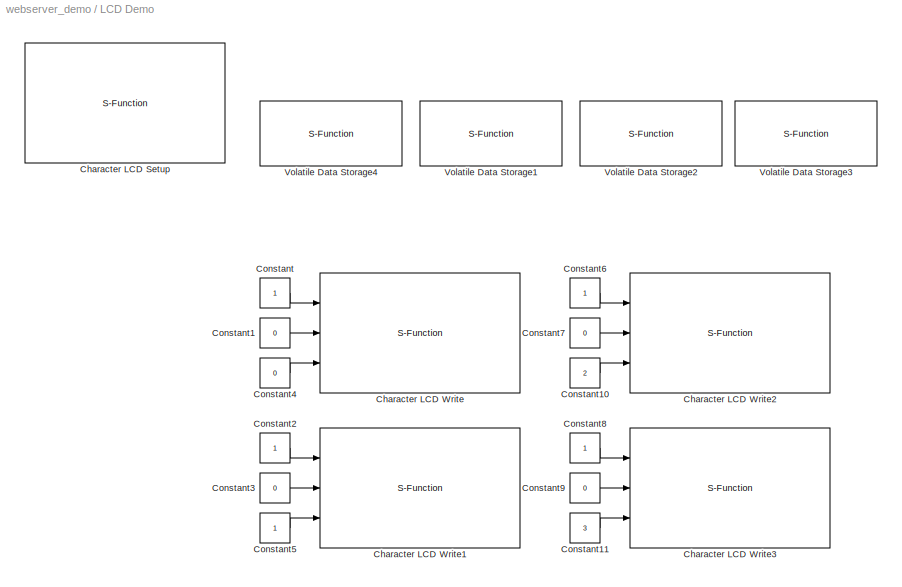
BLOCK [SubSystem] LCD Demo
  FunctionWithSeparateData = off
  MaskHideContents = off
  MinAlgLoopOccurrences = off
  Opaque = off
  Ports = []
  PropExecContextOutsideSubsystem = off
  RTWSystemCode = Auto
  RequestExecContextInheritance = off
BLOCK [S-Function] LCD Demo/Character LCD Setup
  EnableBusSupport = off
  FunctionName = amg_clcd
  MaskCallbackString = amg_clcd_callback('configuration');||||||||||||||||amg_clcd_callback('usestringbuffer');||amg_clcd_callback('varname');|||amg_clcd_callback('confstr');|amg_clcd_callback('sampletime');|amg_clcd_callback('sampletimestr');|amg_clcd_callback('blockid');  <repeated x5 — deduplicated; at blocks: Character LCD Setup, Character LCD Write, Character LCD Write1, Character LCD Write2, Character LCD Write3>
  MaskDisplay = text(0.5, 0.5, 'Module: CLCD1 (Setup)\\nInterface: 4-bits\\nCntrl: E7/E8/E9\\nD[7:4]: E12/E13/E14/E15\\nTs (sec): 0.001','ver','middle','hor','center');
  MaskEnableString = on,on,on,off,off,on,on,on,on,on,on,on,on,on,on,on,on,on,off,off,off,on,on,on,on
  MaskHelp = web(fullfile(waijungdocroot,'amg_clcd_setup.htm'), '-browser')
  MaskIconFrame = on
  MaskIconOpaque = on
  MaskIconRotate = none
  MaskIconUnits = normalized
  MaskInitialization = amg_clcd_callback('init');
  MaskPortRotate = default
  MaskPromptString = Configuration:|Module:|LCD model:|Interface:|Number of lines (2 or 4):|Number of columns:|GPIO Output type:|GPIO control port:|GPIO control pin, RS:|GPIO control pin, RW:|GPIO control pin, EN:|GPIO data D[7:4] port|GPIO data pin, D4:|GPIO data pin, D5:|GPIO data pin, D6:|GPIO data pin, D7:|Use string buffer|String buffer|Variable name|Input type array|Output type array|Configuration string|Sample ...<+55ch>
  MaskSelfModifiable = on
  MaskStyleString = popup(Setup|Transaction),popup(1|2|3|4),popup(amg CLCD Std),popup(4-bits),edit,edit,popup(Push-pull|Open-drain),popup(A|B|C|D|E|F|G|H|I),popup(0|1|2|3|4|5|6|7|8|9|10|11|12|13|14|15),popup(0|1|2|3|4|5|6|7|8|9|10|11|12|13|14|15),popup(0|1|2|3|4|5|6|7|8|9|10|11|12|13|14|15),popup(A|B|C|D|E|F|G|H|I),popup(0|1|2|3|4|5|6|7|8|9|10|11|12|13|14|15),popup(0|1|2|3|4|5|6|7|8|9|10|11|12|13|14|15),popup(0|1|2|3...<+135ch>
  MaskTabNameString = ,,,,,,,,,,,,,,,,,,,,,,,,
  MaskToolTipString = on,on,on,on,on,on,on,on,on,on,on,on,on,on,on,on,on,on,on,on,on,on,on,on,on
  MaskTunableValueString = off,off,off,off,off,off,off,off,off,off,off,off,off,off,off,off,off,off,off,off,off,off,off,off,off
  MaskType = amg_clcd
  MaskValueString = Setup|1|amg CLCD Std|4-bits|4|16|Push-pull|E|7|8|9|E|12|13|14|15|off|<empty>||[0]|[0]|[\"4\",\"4\",\"16\",\"PP\",\"E\",\"7\",\"9\",\"8\",\"\",\"E\",\"\",\"\",\"\",\"\",\"12\",\"13\",\"14\",\"15\",\"0\",\"\",\"0\",\"0\",\"0\",\"0\",\"1\",\"0\",\"0\",\"0\",\"0\",\"stm32f4\"]|-1|0.001|LCDDemoCharacterLCDSetup
  MaskVarAliasString = ,,,,,,,,,,,,,,,,,,,,,,,,
  MaskVariables = configuration=&1;module=&2;model=&3;interface=&4;linecount=@5;columncount=@6;gpiotype=&7;controlport=&8;control_rs=&9;control_rw=&10;control_en=&11;dataport=&12;data0=&13;data1=&14;data2=&15;data3=&16;usestringbuffer=@17;stringbuffer=&18;varname=&19;inputtypearray=@20;outputtypearray=@21;confstr=&22;sampletime=@23;sampletimestr=&24;blockid=&25;  <repeated x5 — deduplicated; at blocks: Character LCD Setup, Character LCD Write, Character LCD Write1, Character LCD Write2, Character LCD Write3>
  MaskVisibilityString = off,on,off,on,off,on,on,on,on,on,on,on,on,on,on,on,off,off,off,off,off,off,off,off,off
  Parameters = module,configuration,inputtypearray,outputtypearray,confstr,sampletime,sampletimestr,blockid
  Ports = []
BLOCK [S-Function] LCD Demo/Character LCD Write
  EnableBusSupport = off
  FunctionName = amg_clcd
  MaskDescription = Note for cmd:\n1 - Clear LCD Line before write.\n0 or otherwise - Write into LCD Line with existing data.\n
  MaskDisplay = text(0.5, 0.5, 'Module: CLCD1 (Write)\\nBuffer: lcd_line1\\nTs (sec): 0.001','ver','middle','hor','center');port_label('input', 1,'cmd');port_label('input', 2,'xpos');port_label('input', 3,'ypos');
  MaskEnableString = on,on,on,off,off,on,on,on,on,on,on,on,on,on,on,on,on,on,off,off,off,on,on,on,on
  MaskHelp = web(fullfile(waijungdocroot,'amg_clcd_write.htm'), '-browser')
  MaskIconFrame = on
  MaskIconOpaque = on
  MaskIconRotate = none
  MaskIconUnits = normalized
  MaskInitialization = amg_clcd_callback('init');
  MaskPortRotate = default
  MaskPromptString = Configuration:|Module:|LCD model:|Interface:|Number of lines:|Number of columns:|GPIO Output type:|GPIO control port:|GPIO control pin, RS:|GPIO control pin, RW:|GPIO control pin, EN:|GPIO data D[7:4] port|GPIO data pin, D4:|GPIO data pin, D5:|GPIO data pin, D6:|GPIO data pin, D7:|Use string buffer|String buffer|Variable name|Input type array|Output type array|Configuration string|Sample time (sec...<+46ch>  <repeated x4 — deduplicated; at blocks: Character LCD Write, Character LCD Write1, Character LCD Write2, Character LCD Write3>
  MaskSelfModifiable = on
  MaskStyleString = popup(Setup|Transaction),popup(1|2|3|4),popup(amg CLCD Std),popup(4-bits),edit,edit,popup(Push-pull|Open-drain),popup(A|B|C|D|E|F|G|H|I),popup(0|1|2|3|4|5|6|7|8|9|10|11|12|13|14|15),popup(0|1|2|3|4|5|6|7|8|9|10|11|12|13|14|15),popup(0|1|2|3|4|5|6|7|8|9|10|11|12|13|14|15),popup(A|B|C|D|E|F|G|H|I),popup(0|1|2|3|4|5|6|7|8|9|10|11|12|13|14|15),popup(0|1|2|3|4|5|6|7|8|9|10|11|12|13|14|15),popup(0|1|2|3...<+222ch>  <repeated x4 — deduplicated; at blocks: Character LCD Write, Character LCD Write1, Character LCD Write2, Character LCD Write3>
  MaskTabNameString = ,,,,,,,,,,,,,,,,,,,,,,,,
  MaskToolTipString = on,on,on,on,on,on,on,on,on,on,on,on,on,on,on,on,on,on,on,on,on,on,on,on,on
  MaskTunableValueString = off,off,off,off,off,off,off,off,off,off,off,off,off,off,off,off,off,off,off,off,off,off,off,off,off
  MaskType = amg_clcd
  MaskValueString = Transaction|1|amg CLCD Std|4-bits|4|20|Push-pull|E|15|13|11|A|7|5|3|1|on|lcd_line1|LCDDemoVolatileDataStorage4_lcd_line1|[3 -1 -1 -1]|[0]|[\"4\",\"4\",\"20\",\"PP\",\"E\",\"15\",\"11\",\"13\",\"\",\"A\",\"\",\"\",\"\",\"\",\"7\",\"5\",\"3\",\"1\",\"1\",\"LCDDemoVolatileDataStorage4_lcd_line1\",\"1\",\"0\",\"0\",\"0\",\"1\",\"0\",\"0\",\"0\",\"0\",\"stm32f4\"]|-1|0.001|LCDDemoCharacterLCDWrite
  MaskVarAliasString = ,,,,,,,,,,,,,,,,,,,,,,,,
  MaskVisibilityString = off,on,off,off,off,off,off,off,off,off,off,off,off,off,off,off,on,on,off,off,off,off,on,off,off
  Parameters = module,configuration,inputtypearray,outputtypearray,confstr,sampletime,sampletimestr,blockid
  Ports = [3]
BLOCK [S-Function] LCD Demo/Character LCD Write1
  EnableBusSupport = off
  FunctionName = amg_clcd
  MaskDescription = Note for cmd:\n1 - Clear LCD Line before write.\n0 or otherwise - Write into LCD Line with existing data.\n
  MaskDisplay = text(0.5, 0.5, 'Module: CLCD1 (Write)\\nBuffer: lcd_line2\\nTs (sec): 0.001','ver','middle','hor','center');port_label('input', 1,'cmd');port_label('input', 2,'xpos');port_label('input', 3,'ypos');
  MaskEnableString = on,on,on,off,off,on,on,on,on,on,on,on,on,on,on,on,on,on,off,off,off,on,on,on,on
  MaskHelp = web(fullfile(waijungdocroot,'amg_clcd_write.htm'), '-browser')
  MaskIconFrame = on
  MaskIconOpaque = on
  MaskIconRotate = none
  MaskIconUnits = normalized
  MaskInitialization = amg_clcd_callback('init');
  MaskPortRotate = default
  MaskSelfModifiable = on
  MaskTabNameString = ,,,,,,,,,,,,,,,,,,,,,,,,
  MaskToolTipString = on,on,on,on,on,on,on,on,on,on,on,on,on,on,on,on,on,on,on,on,on,on,on,on,on
  MaskTunableValueString = off,off,off,off,off,off,off,off,off,off,off,off,off,off,off,off,off,off,off,off,off,off,off,off,off
  MaskType = amg_clcd
  MaskValueString = Transaction|1|amg CLCD Std|4-bits|4|20|Push-pull|E|15|13|11|A|7|5|3|1|on|lcd_line2|LCDDemoVolatileDataStorage1_lcd_line2|[3 -1 -1 -1]|[0]|[\"4\",\"4\",\"20\",\"PP\",\"E\",\"15\",\"11\",\"13\",\"\",\"A\",\"\",\"\",\"\",\"\",\"7\",\"5\",\"3\",\"1\",\"1\",\"LCDDemoVolatileDataStorage1_lcd_line2\",\"1\",\"0\",\"0\",\"0\",\"1\",\"0\",\"0\",\"0\",\"0\",\"stm32f4\"]|-1|0.001|LCDDemoCharacterLCDWrite1
  MaskVarAliasString = ,,,,,,,,,,,,,,,,,,,,,,,,
  MaskVisibilityString = off,on,off,off,off,off,off,off,off,off,off,off,off,off,off,off,on,on,off,off,off,off,on,off,off
  Parameters = module,configuration,inputtypearray,outputtypearray,confstr,sampletime,sampletimestr,blockid
  Ports = [3]
BLOCK [S-Function] LCD Demo/Character LCD Write2
  EnableBusSupport = off
  FunctionName = amg_clcd
  MaskDescription = Note for cmd:\n1 - Clear LCD Line before write.\n0 or otherwise - Write into LCD Line with existing data.\n
  MaskDisplay = text(0.5, 0.5, 'Module: CLCD1 (Write)\\nBuffer: lcd_line3\\nTs (sec): 0.001','ver','middle','hor','center');port_label('input', 1,'cmd');port_label('input', 2,'xpos');port_label('input', 3,'ypos');
  MaskEnableString = on,on,on,off,off,on,on,on,on,on,on,on,on,on,on,on,on,on,off,off,off,on,on,on,on
  MaskHelp = web(fullfile(waijungdocroot,'amg_clcd_write.htm'), '-browser')
  MaskIconFrame = on
  MaskIconOpaque = on
  MaskIconRotate = none
  MaskIconUnits = normalized
  MaskInitialization = amg_clcd_callback('init');
  MaskPortRotate = default
  MaskSelfModifiable = on
  MaskTabNameString = ,,,,,,,,,,,,,,,,,,,,,,,,
  MaskToolTipString = on,on,on,on,on,on,on,on,on,on,on,on,on,on,on,on,on,on,on,on,on,on,on,on,on
  MaskTunableValueString = off,off,off,off,off,off,off,off,off,off,off,off,off,off,off,off,off,off,off,off,off,off,off,off,off
  MaskType = amg_clcd
  MaskValueString = Transaction|1|amg CLCD Std|4-bits|4|20|Push-pull|E|15|13|11|A|7|5|3|1|on|lcd_line3|LCDDemoVolatileDataStorage2_lcd_line3|[3 -1 -1 -1]|[0]|[\"4\",\"4\",\"20\",\"PP\",\"E\",\"15\",\"11\",\"13\",\"\",\"A\",\"\",\"\",\"\",\"\",\"7\",\"5\",\"3\",\"1\",\"1\",\"LCDDemoVolatileDataStorage2_lcd_line3\",\"1\",\"0\",\"0\",\"0\",\"1\",\"0\",\"0\",\"0\",\"0\",\"stm32f4\"]|-1|0.001|LCDDemoCharacterLCDWrite2
  MaskVarAliasString = ,,,,,,,,,,,,,,,,,,,,,,,,
  MaskVisibilityString = off,on,off,off,off,off,off,off,off,off,off,off,off,off,off,off,on,on,off,off,off,off,on,off,off
  Parameters = module,configuration,inputtypearray,outputtypearray,confstr,sampletime,sampletimestr,blockid
  Ports = [3]
BLOCK [S-Function] LCD Demo/Character LCD Write3
  EnableBusSupport = off
  FunctionName = amg_clcd
  MaskDescription = Note for cmd:\n1 - Clear LCD Line before write.\n0 or otherwise - Write into LCD Line with existing data.\n
  MaskDisplay = text(0.5, 0.5, 'Module: CLCD1 (Write)\\nBuffer: lcd_line4\\nTs (sec): 0.001','ver','middle','hor','center');port_label('input', 1,'cmd');port_label('input', 2,'xpos');port_label('input', 3,'ypos');
  MaskEnableString = on,on,on,off,off,on,on,on,on,on,on,on,on,on,on,on,on,on,off,off,off,on,on,on,on
  MaskHelp = web(fullfile(waijungdocroot,'amg_clcd_write.htm'), '-browser')
  MaskIconFrame = on
  MaskIconOpaque = on
  MaskIconRotate = none
  MaskIconUnits = normalized
  MaskInitialization = amg_clcd_callback('init');
  MaskPortRotate = default
  MaskSelfModifiable = on
  MaskTabNameString = ,,,,,,,,,,,,,,,,,,,,,,,,
  MaskToolTipString = on,on,on,on,on,on,on,on,on,on,on,on,on,on,on,on,on,on,on,on,on,on,on,on,on
  MaskTunableValueString = off,off,off,off,off,off,off,off,off,off,off,off,off,off,off,off,off,off,off,off,off,off,off,off,off
  MaskType = amg_clcd
  MaskValueString = Transaction|1|amg CLCD Std|4-bits|4|20|Push-pull|E|15|13|11|A|7|5|3|1|on|lcd_line4|LCDDemoVolatileDataStorage3_lcd_line4|[3 -1 -1 -1]|[0]|[\"4\",\"4\",\"20\",\"PP\",\"E\",\"15\",\"11\",\"13\",\"\",\"A\",\"\",\"\",\"\",\"\",\"7\",\"5\",\"3\",\"1\",\"1\",\"LCDDemoVolatileDataStorage3_lcd_line4\",\"1\",\"0\",\"0\",\"0\",\"1\",\"0\",\"0\",\"0\",\"0\",\"stm32f4\"]|-1|0.001|LCDDemoCharacterLCDWrite3
  MaskVarAliasString = ,,,,,,,,,,,,,,,,,,,,,,,,
  MaskVisibilityString = off,on,off,off,off,off,off,off,off,off,off,off,off,off,off,off,on,on,off,off,off,off,on,off,off
  Parameters = module,configuration,inputtypearray,outputtypearray,confstr,sampletime,sampletimestr,blockid
  Ports = [3]
BLOCK [Constant] LCD Demo/Constant
  OutDataType = fixdt(1, 16)
  OutDataTypeMode = uint8
  OutDataTypeStr = uint8
  OutScaling = 2^0
BLOCK [Constant] LCD Demo/Constant1
  OutDataType = fixdt(1, 16)
  OutDataTypeMode = uint8
  OutDataTypeStr = uint8
  OutScaling = 2^0
  Value = 0
BLOCK [Constant] LCD Demo/Constant10
  OutDataType = fixdt(1, 16)
  OutDataTypeMode = uint8
  OutDataTypeStr = uint8
  OutScaling = 2^0
  Value = 2
BLOCK [Constant] LCD Demo/Constant11
  OutDataType = fixdt(1, 16)
  OutDataTypeMode = uint8
  OutDataTypeStr = uint8
  OutScaling = 2^0
  Value = 3
BLOCK [Constant] LCD Demo/Constant2
  OutDataType = fixdt(1, 16)
  OutDataTypeMode = uint8
  OutDataTypeStr = uint8
  OutScaling = 2^0
BLOCK [Constant] LCD Demo/Constant3
  OutDataType = fixdt(1, 16)
  OutDataTypeMode = uint8
  OutDataTypeStr = uint8
  OutScaling = 2^0
  Value = 0
BLOCK [Constant] LCD Demo/Constant4
  OutDataType = fixdt(1, 16)
  OutDataTypeMode = uint8
  OutDataTypeStr = uint8
  OutScaling = 2^0
  Value = 0
BLOCK [Constant] LCD Demo/Constant5
  OutDataType = fixdt(1, 16)
  OutDataTypeMode = uint8
  OutDataTypeStr = uint8
  OutScaling = 2^0
BLOCK [Constant] LCD Demo/Constant6
  OutDataType = fixdt(1, 16)
  OutDataTypeMode = uint8
  OutDataTypeStr = uint8
  OutScaling = 2^0
BLOCK [Constant] LCD Demo/Constant7
  OutDataType = fixdt(1, 16)
  OutDataTypeMode = uint8
  OutDataTypeStr = uint8
  OutScaling = 2^0
  Value = 0
BLOCK [Constant] LCD Demo/Constant8
  OutDataType = fixdt(1, 16)
  OutDataTypeMode = uint8
  OutDataTypeStr = uint8
  OutScaling = 2^0
BLOCK [Constant] LCD Demo/Constant9
  OutDataType = fixdt(1, 16)
  OutDataTypeMode = uint8
  OutDataTypeStr = uint8
  OutScaling = 2^0
  Value = 0
BLOCK [S-Function] LCD Demo/Volatile Data Storage1
  EnableBusSupport = off
  FunctionName = waijung_vdata_storage
  MaskDescription = This block implements a volatile Data Storage.
  MaskDisplay = text(0.5, 0.5, 'Name: lcd_line2\\nType: string','ver','middle','hor','center')
  MaskEnableString = on,on,on,off,on,on,on,on,off,on,off,off,on
  MaskHelp = web(fullfile(waijungdocroot,'Volatile_Data_Storage.htm'))
  MaskIconFrame = on
  MaskIconOpaque = on
  MaskIconRotate = none
  MaskIconUnits = normalized
  MaskInitialization = waijung_vdata_storage_callback('init');
  MaskPortRotate = default
  MaskSelfModifiable = on
  MaskTabNameString = ,,,,,,,,,,,,
  MaskToolTipString = on,on,on,on,on,on,on,on,on,on,on,on,on
  MaskTunableValueString = off,off,off,off,off,off,off,off,off,off,off,off,off
  MaskType = waijung_vdata_storage
  MaskValueString = string|lcd_line2|0|LCDDemoVolatileDataStorage1_lcd_line2|17|''|Write/ Read|'%s'|(void*)0|-1|0.001|LCDDemoVolatileDataStorage1|char
  MaskVarAliasString = ,,,,,,,,,,,,
  MaskVisibilityString = on,on,off,off,on,on,on,on,off,on,off,off,off
  Parameters = storagetype,storagename,initval,varname,buffersize,initvalstring,sampletime,sampletimestr,blockid,storagetypestr
  Ports = []
BLOCK [S-Function] LCD Demo/Volatile Data Storage2
  EnableBusSupport = off
  FunctionName = waijung_vdata_storage
  MaskDescription = This block implements a volatile Data Storage.
  MaskDisplay = text(0.5, 0.5, 'Name: lcd_line3\\nType: string','ver','middle','hor','center')
  MaskEnableString = on,on,on,off,on,on,on,on,off,on,off,off,on
  MaskHelp = web(fullfile(waijungdocroot,'Volatile_Data_Storage.htm'))
  MaskIconFrame = on
  MaskIconOpaque = on
  MaskIconRotate = none
  MaskIconUnits = normalized
  MaskInitialization = waijung_vdata_storage_callback('init');
  MaskPortRotate = default
  MaskSelfModifiable = on
  MaskTabNameString = ,,,,,,,,,,,,
  MaskToolTipString = on,on,on,on,on,on,on,on,on,on,on,on,on
  MaskTunableValueString = off,off,off,off,off,off,off,off,off,off,off,off,off
  MaskType = waijung_vdata_storage
  MaskValueString = string|lcd_line3|0|LCDDemoVolatileDataStorage2_lcd_line3|17|''|Write/ Read|'%s'|(void*)0|-1|0.001|LCDDemoVolatileDataStorage2|char
  MaskVarAliasString = ,,,,,,,,,,,,
  MaskVisibilityString = on,on,off,off,on,on,on,on,off,on,off,off,off
  Parameters = storagetype,storagename,initval,varname,buffersize,initvalstring,sampletime,sampletimestr,blockid,storagetypestr
  Ports = []
BLOCK [S-Function] LCD Demo/Volatile Data Storage3
  EnableBusSupport = off
  FunctionName = waijung_vdata_storage
  MaskDescription = This block implements a volatile Data Storage.
  MaskDisplay = text(0.5, 0.5, 'Name: lcd_line4\\nType: string','ver','middle','hor','center')
  MaskEnableString = on,on,on,off,on,on,on,on,off,on,off,off,on
  MaskHelp = web(fullfile(waijungdocroot,'Volatile_Data_Storage.htm'))
  MaskIconFrame = on
  MaskIconOpaque = on
  MaskIconRotate = none
  MaskIconUnits = normalized
  MaskInitialization = waijung_vdata_storage_callback('init');
  MaskPortRotate = default
  MaskSelfModifiable = on
  MaskTabNameString = ,,,,,,,,,,,,
  MaskToolTipString = on,on,on,on,on,on,on,on,on,on,on,on,on
  MaskTunableValueString = off,off,off,off,off,off,off,off,off,off,off,off,off
  MaskType = waijung_vdata_storage
  MaskValueString = string|lcd_line4|0|LCDDemoVolatileDataStorage3_lcd_line4|17|''|Write/ Read|'%s'|(void*)0|-1|0.001|LCDDemoVolatileDataStorage3|char
  MaskVarAliasString = ,,,,,,,,,,,,
  MaskVisibilityString = on,on,off,off,on,on,on,on,off,on,off,off,off
  Parameters = storagetype,storagename,initval,varname,buffersize,initvalstring,sampletime,sampletimestr,blockid,storagetypestr
  Ports = []
BLOCK [S-Function] LCD Demo/Volatile Data Storage4
  EnableBusSupport = off
  FunctionName = waijung_vdata_storage
  MaskDescription = This block implements a volatile Data Storage.
  MaskDisplay = text(0.5, 0.5, 'Name: lcd_line1\\nType: string','ver','middle','hor','center')
  MaskEnableString = on,on,on,off,on,on,on,on,off,on,off,off,on
  MaskHelp = web(fullfile(waijungdocroot,'Volatile_Data_Storage.htm'))
  MaskIconFrame = on
  MaskIconOpaque = on
  MaskIconRotate = none
  MaskIconUnits = normalized
  MaskInitialization = waijung_vdata_storage_callback('init');
  MaskPortRotate = default
  MaskSelfModifiable = on
  MaskTabNameString = ,,,,,,,,,,,,
  MaskToolTipString = on,on,on,on,on,on,on,on,on,on,on,on,on
  MaskTunableValueString = off,off,off,off,off,off,off,off,off,off,off,off,off
  MaskType = waijung_vdata_storage
  MaskValueString = string|lcd_line1|0|LCDDemoVolatileDataStorage4_lcd_line1|17|'Welcome'|Write/ Read|'%s'|(void*)0|-1|0.001|LCDDemoVolatileDataStorage4|char
  MaskVarAliasString = ,,,,,,,,,,,,
  MaskVisibilityString = on,on,off,off,on,on,on,on,off,on,off,off,off
  Parameters = storagetype,storagename,initval,varname,buffersize,initvalstring,sampletime,sampletimestr,blockid,storagetypestr
  Ports = []
BLOCK [SubSystem] LED Toggle Demo
  FunctionWithSeparateData = off
  MaskHideContents = off
  MinAlgLoopOccurrences = off
  Opaque = off
  Ports = []
  PropExecContextOutsideSubsystem = off
  RTWSystemCode = Auto
  RequestExecContextInheritance = off
BLOCK [SubSystem] LED Toggle Demo/Function-Call\nSubsystem
  FunctionWithSeparateData = off
  MaskHideContents = off
  MinAlgLoopOccurrences = off
  Opaque = off
  Ports = [0, 0, 0, 1]
  PropExecContextOutsideSubsystem = off
  RTWSystemCode = Auto
  RequestExecContextInheritance = off
  TreatAsAtomicUnit = on
BLOCK [DataTypeConversion] LED Toggle Demo/Function-Call\nSubsystem/Data Type Conversion
  OutDataType = fixdt(1, 16)
  OutScaling = 2^0
  RndMeth = Floor
  SaturateOnIntegerOverflow = off
BLOCK [Reference] LED Toggle Demo/Function-Call\nSubsystem/Digital Output  REF=stm32f4_io_lib/Digital Output
  Ports = [1]
  SourceBlock = stm32f4_io_lib/Digital Output
  SourceType = stm32f4_digital_output
  bitbandingstr = \n#define LEDToggleDemoFunctionCallSubsystemDigitalOutput_D15 Peripheral_BB(GPIOD->ODR, 15)  /* Output pin */
  blockid = LEDToggleDemoFunctionCallSubsystemDigitalOutput
  cinputportlabel = In1, In2
  coutputportlabel = 0
  enablecustomportlabel = off
  globalinit = off
  pinstr = GPIO_Pin_15
  port = D
  porttype = Push Pull
  porttypestr = PP
  sampletime = -1
  sampletimestr = -1
  speed = 100
  use_bitband = on
  use_pin0 = off
  use_pin1 = off
  use_pin10 = off
  use_pin11 = off
  use_pin12 = off
  use_pin13 = off
  use_pin14 = off
  use_pin15 = on
  use_pin2 = off
  use_pin3 = off
  use_pin4 = off
  use_pin5 = off
  use_pin6 = off
  use_pin7 = off
  use_pin8 = off
  use_pin9 = off
  usedpinarray = [0  0  0  0  0  0  0  0  0  0  0  0  0  0  0  1]
BLOCK [Logic] LED Toggle Demo/Function-Call\nSubsystem/Logical\nOperator1
  AllPortsSameDT = off
  LogicDataType = fixdt(0, 8)
  Operator = NOT
  OutDataTypeMode = boolean
  OutDataTypeStr = boolean
  Ports = [1, 1]
BLOCK [Memory] LED Toggle Demo/Function-Call\nSubsystem/Memory
  InheritSampleTime = on
BLOCK [S-Function] LED Toggle Demo/Function-Call\nSubsystem/Volatile Data Storage Write
  EnableBusSupport = off
  FunctionName = waijung_vdata_write
  MaskDescription = This block implements write data to a buffer.
  MaskDisplay = text(0.95, 0.5, 'Buffer: led1','ver','middle','hor','right');port_label('input',1,'D1(uint32)')
  MaskEnableString = on,off,off,off,off,on,on
  MaskHelp = web(fullfile(waijungdocroot,'waijung_vdata_write.htm'))
  MaskIconFrame = on
  MaskIconOpaque = on
  MaskIconRotate = none
  MaskIconUnits = normalized
  MaskInitialization = waijung_vdata_write_callback('init');
  MaskPortRotate = default
  MaskPromptString = Storage Name|Variable name|Sample time (sec)|Compiled sample time (sec) in string|BlockID|Data type|Data type string
  MaskSelfModifiable = on
  MaskStyleString = popup(adc|adc_f|button_on|button_off|btn2|btn3|btn1|dip|datetime|lcd_line2|lcd_line3|lcd_line4|lcd_line1|led1|pwm),edit,edit,edit,edit,edit,edit
  MaskTabNameString = ,,,,,,
  MaskToolTipString = on,on,on,on,on,on,on
  MaskTunableValueString = off,off,off,off,off,off,off
  MaskType = waijung_vdata_write
  MaskValueString = led1|LEDToggleDemoVolatileDataStorage_led1|-1|-1|LEDToggleDemoFunctionCallSubsystemVolatileDataStorageWrite|uint32|uint32_t
  MaskVarAliasString = ,,,,,,
  MaskVariables = storagename=&1;varname=&2;sampletime=@3;sampletimestr=&4;blockid=&5;storagetype=&6;storagetypestr=&7;
  MaskVisibilityString = on,off,on,off,off,off,off
  Parameters = storagename,varname,sampletime,sampletimestr,blockid,storagetype,storagetypestr
  Ports = [1]
BLOCK [TriggerPort] LED Toggle Demo/Function-Call\nSubsystem/function
  Ports = []
  StatesWhenEnabling = held
  TriggerType = function-call
BLOCK [S-Function] LED Toggle Demo/Httpserver CGI varset callback
  EnableBusSupport = off
  FunctionName = waijung_webserver_vdata_mapping
  MaskCallbackString = waijung_webserver_vdata_mapping_callback('vdatamapping');||||waijung_webserver_vdata_mapping_callback('accessmode');|||||||waijung_webserver_vdata_mapping_callback('blockid');|
  MaskDescription = The block generate function-call during variable set value via http varset.cgi
  MaskDisplay = text(0.05, 0.5, 'Mapping: led1\\nAccess: ReadWrite','ver','middle','hor','left');port_label('output', 1,'Call ISR');
  MaskEnableString = on,off,off,off,on,on,on,on,on,on,on,on,off
  MaskHelp = web(fullfile(waijungdocroot,'Webserver_Volatile_Data_Mappin.htm'), '-browser')
  MaskIconFrame = on
  MaskIconOpaque = on
  MaskIconRotate = none
  MaskIconUnits = normalized
  MaskInitialization = waijung_webserver_vdata_mapping_callback('init');
  MaskPortRotate = default
  MaskPromptString = Volatile Data Mapping|Volatile Data Reference|Data type|Size|Access mode|Enable callback on CGI varset|Enable 'name=value' pair on CGI varget|Callback ISR|Obsolete status|Input data type|Output data type|BlockID|Sample time (sec)
  MaskSelfModifiable = on
  MaskStyleString = popup(adc|adc_f|button_on|button_off|btn2|btn3|btn1|dip|datetime|lcd_line2|lcd_line3|lcd_line4|lcd_line1|led1|pwm),edit,edit,edit,popup(ReadWrite|ReadOnly),checkbox,checkbox,edit,popup(No),edit,edit,edit,edit
  MaskTabNameString = ,,,,,,,,,,,,
  MaskToolTipString = on,on,on,on,on,on,on,on,on,on,on,on,on
  MaskTunableValueString = off,off,off,off,off,off,off,off,off,off,off,off,off
  MaskType = waijung_webserver_vdata_mapping
  MaskValueString = led1|LEDToggleDemoVolatileDataStorage_led1|uint32|1|ReadWrite|on|on|LEDToggleDemoHttpserverCGIvarsetcallback_varset_ISR|No|[0]|[0]|LEDToggleDemoHttpserverCGIvarsetcallback|inf
  MaskVarAliasString = ,,,,,,,,,,,,
  MaskVariables = vdatamapping=&1;vdatareference=&2;vdatatype=&3;vdatasize=@4;accessmode=&5;callback=@6;namevaluepair=@7;callbackisr=&8;obsoletestatus=&9;inputtype=@10;outputtype=@11;blockid=&12;sampletime=@13;
  MaskVisibilityString = on,off,on,off,off,off,off,off,off,off,off,off,off
  Parameters = callback,inputtype,outputtype,sampletime,blockid
  Ports = [0, 1]
BLOCK [S-Function] LED Toggle Demo/Volatile Data Storage
  EnableBusSupport = off
  FunctionName = waijung_vdata_storage
  MaskDescription = This block implements a volatile Data Storage.
  MaskDisplay = text(0.5, 0.5, 'Name: led1\\nType: uint32','ver','middle','hor','center')
  MaskEnableString = on,on,on,off,on,on,on,on,off,on,off,off,on
  MaskHelp = web(fullfile(waijungdocroot,'Volatile_Data_Storage.htm'))
  MaskIconFrame = on
  MaskIconOpaque = on
  MaskIconRotate = none
  MaskIconUnits = normalized
  MaskInitialization = waijung_vdata_storage_callback('init');
  MaskPortRotate = default
  MaskSelfModifiable = on
  MaskTabNameString = ,,,,,,,,,,,,
  MaskToolTipString = on,on,on,on,on,on,on,on,on,on,on,on,on
  MaskTunableValueString = off,off,off,off,off,off,off,off,off,off,off,off,off
  MaskType = waijung_vdata_storage
  MaskValueString = uint32|led1|0|LEDToggleDemoVolatileDataStorage_led1|64|'Initial string'|Write/ Read|'%u'|LEDToggleDemoHttpserverCGIvarsetcallback_varset_ISR|-1|0.001|LEDToggleDemoVolatileDataStorage|uint32_t
  MaskVarAliasString = ,,,,,,,,,,,,
  MaskVisibilityString = on,on,on,off,off,off,on,on,on,on,off,off,off
  Parameters = storagetype,storagename,initval,varname,buffersize,initvalstring,sampletime,sampletimestr,blockid,storagetypestr
  Ports = []
BLOCK [SubSystem] PWM Demo
  FunctionWithSeparateData = off
  MaskHideContents = off
  MinAlgLoopOccurrences = off
  Opaque = off
  Ports = []
  PropExecContextOutsideSubsystem = off
  RTWSystemCode = Auto
  RequestExecContextInheritance = off
BLOCK [S-Function] PWM Demo/Basic PWM
  EnableBusSupport = off
  FunctionName = stm32f4_basicpwm
  MaskCallbackString = stm32f4_basicpwm_callback('timer');|stm32f4_basicpwm_callback('pwmperiod');|stm32f4_basicpwm_callback('polarity');||stm32f4_basicpwm_callback('ch1pin');|stm32f4_basicpwm_callback('ch2pin');|stm32f4_basicpwm_callback('ch3pin');|stm32f4_basicpwm_callback('ch4pin');|stm32f4_basicpwm_callback('sampletime');|stm32f4_basicpwm_callback('sampletimestr');|stm32f4_basicpwm_callback('blockid');||stm32f4_basi...<+48ch>
  MaskDescription = This block implements basic Edge-aligned Pulse Width Modulation (PWM) generation.\nAll timers are 16-bit. The PWM period is fixed (per timer).
  MaskDisplay = text(0.95, 0.5, 'Timer: 4\\nPolarity: Active High\\nPeriod (sec) 0.02\\nTs (sec): 0.01','ver','middle','hor','right');port_label('input', 1,'CH1 (D12)');port_label('input', 2,'CH2 (D13)')
  MaskEnableString = on,on,on,off,on,on,on,on,on,off,off,on,on,on,on,on,off,off,off,off,off,off
  MaskHelp = web(fullfile(waijungdocroot,'stm32f4_basicpwm.htm'),'-browser')
  MaskIconFrame = on
  MaskIconOpaque = on
  MaskIconRotate = none
  MaskIconUnits = normalized
  MaskInitialization = stm32f4_basicpwm_callback('init');
  MaskPortRotate = default
  MaskPromptString = Timer|PWM Period (seconds)|Polarity|Polaritystr|Channel 1|Channel 2|Channel 3|Channel 4|Sample time (sec)|Compiled sample time (sec) in string|BlockID|Port pin string|Enable custom port labels|Custom input port labels (Ex. In1, In2, In3)|Custom output port labels (Ex. Out1, Out2, Out3)|APB|Port string|Pin string|Pin matrix|Timer ARR|Timer PRESCALE|Channel order
  MaskSelfModifiable = on
  MaskStyleString = popup(1|2|3|4|5|8|9|10|11|12|13|14),edit,popup(Active High|Active Low),edit,popup(Not available - Do not use|D12|B6),popup(Not available - Do not use|D13|B7),popup(Not available - Do not use|D14|B8),popup(Not available - Do not use|D15|B9),edit,edit,edit,edit,checkbox,edit,edit,edit,edit,edit,edit,edit,edit,edit
  MaskTabNameString = ,,,,,,,,,,,,,,,,,,,,,
  MaskToolTipString = on,on,on,on,on,on,on,on,on,on,on,on,on,on,on,on,on,on,on,on,on,on
  MaskTunableValueString = off,off,off,off,off,off,off,off,off,off,off,off,off,off,off,off,off,off,off,off,off,off
  MaskType = stm32f4_basicpwm
  MaskValueString = 4|0.02|Active High|TIM_OCPolarity_High|D12|D13|Not available - Do not use|Not available - Do not use|0.01|0.01|PWMDemoBasicPWM|D12,D13,,|off|In1, In2, In3, In4|0|1|[\"D\"]|[\"GPIO_Pin_12 \\| GPIO_Pin_13\"]|[2 12 13]|64614|25|[1  2]
  MaskVarAliasString = ,,,,,,,,,,,,,,,,,,,,,
  MaskVariables = timer=&1;pwmperiod=@2;polarity=&3;polaritystr=&4;ch1pin=&5;ch2pin=&6;ch3pin=&7;ch4pin=&8;sampletime=@9;sampletimestr=&10;blockid=&11;portpinstr=&12;enablecustomportlabel=@13;cinputportlabel=&14;coutputportlabel=&15;apb=&16;portstr=&17;pinstr=&18;pinmat=@19;timarr=&20;timprescale=&21;chmat=@22;
  MaskVisibilityString = on,on,on,off,on,on,on,on,on,off,off,off,on,off,off,off,off,off,off,off,off,off
  Parameters = timer,pwmperiod,ch1pin,ch2pin,ch3pin,ch4pin,sampletime,sampletimestr,blockid,apb,portstr,pinstr,pinmat,timarr,timprescale,chmat,polaritystr
  Ports = [2]
BLOCK [DataTypeConversion] PWM Demo/Data Type Conversion
  OutDataType = fixdt(1, 16)
  OutScaling = 2^0
  RndMeth = Floor
  SaturateOnIntegerOverflow = off
BLOCK [S-Function] PWM Demo/Volatile Data Storage
  EnableBusSupport = off
  FunctionName = waijung_vdata_storage
  MaskDescription = This block implements a volatile Data Storage.
  MaskDisplay = text(0.5, 0.5, 'Name: pwm\\nType: uint32','ver','middle','hor','center')
  MaskEnableString = on,on,on,off,on,on,on,on,off,on,off,off,on
  MaskHelp = web(fullfile(waijungdocroot,'Volatile_Data_Storage.htm'))
  MaskIconFrame = on
  MaskIconOpaque = on
  MaskIconRotate = none
  MaskIconUnits = normalized
  MaskInitialization = waijung_vdata_storage_callback('init');
  MaskPortRotate = default
  MaskSelfModifiable = on
  MaskTabNameString = ,,,,,,,,,,,,
  MaskToolTipString = on,on,on,on,on,on,on,on,on,on,on,on,on
  MaskTunableValueString = off,off,off,off,off,off,off,off,off,off,off,off,off
  MaskType = waijung_vdata_storage
  MaskValueString = uint32|pwm|0|PWMDemoVolatileDataStorage_pwm|64|'Initial string'|Write/ Read|'%u'|(void*)0|-1|0.001|PWMDemoVolatileDataStorage|uint32_t
  MaskVarAliasString = ,,,,,,,,,,,,
  MaskVisibilityString = on,on,on,off,off,off,on,on,off,on,off,off,off
  Parameters = storagetype,storagename,initval,varname,buffersize,initvalstring,sampletime,sampletimestr,blockid,storagetypestr
  Ports = []
BLOCK [S-Function] PWM Demo/Volatile Data Storage Read
  EnableBusSupport = off
  FunctionName = waijung_vdata_read
  MaskDescription = This block implements read data from a buffer.
  MaskDisplay = text(0.05, 0.5, 'Buffer: pwm','ver','middle','hor','left');port_label('output',1,'D1(uint32)')
  MaskEnableString = on,off,on,off,off,on,on
  MaskHelp = web(fullfile(waijungdocroot,'waijung_vdata_read.htm'))
  MaskIconFrame = on
  MaskIconOpaque = on
  MaskIconRotate = none
  MaskIconUnits = normalized
  MaskInitialization = waijung_vdata_read_callback('init');
  MaskPortRotate = default
  MaskPromptString = Storage Name|Variable name|Sample time (sec)|Compiled sample time (sec) in string|BlockID|Data type|Data type string
  MaskSelfModifiable = on
  MaskStyleString = popup(adc|adc_f|button_on|button_off|btn2|btn3|btn1|dip|datetime|lcd_line2|lcd_line3|lcd_line4|lcd_line1|led1|pwm),edit,edit,edit,edit,edit,edit
  MaskTabNameString = ,,,,,,
  MaskToolTipString = on,on,on,on,on,on,on
  MaskTunableValueString = off,off,off,off,off,off,off
  MaskType = waijung_vdata_read
  MaskValueString = pwm|PWMDemoVolatileDataStorage_pwm|inf|0.01|PWMDemoVolatileDataStorageRead|uint32|uint32_t
  MaskVarAliasString = ,,,,,,
  MaskVariables = storagename=&1;varname=&2;sampletime=@3;sampletimestr=&4;blockid=&5;storagetype=&6;storagetypestr=&7;
  MaskVisibilityString = on,off,on,off,off,off,off
  Parameters = storagename,varname,sampletime,sampletimestr,blockid,storagetype,storagetypestr
  Ports = [0, 1]
BLOCK [SubSystem] SQLite Demo
  FunctionWithSeparateData = off
  MaskHideContents = off
  MinAlgLoopOccurrences = off
  Opaque = off
  Ports = []
  PropExecContextOutsideSubsystem = off
  RTWSystemCode = Auto
  RequestExecContextInheritance = off
BLOCK [Reference] SQLite Demo/SQLite Database Query  REF=amg_sqlite_dataserver/SQLite Database Query
  Ports = [0, 1]
  Priority = 1
  SourceBlock = amg_sqlite_dataserver/SQLite Database Query
  SourceType = waijung_sqlite
  blockid = SQLiteDemoSQLiteDatabaseQuery
  columncount = 2
  columnnamesarray = [\"pwm\",\"adc\"]
  columns = 'pwm numeric, adc real'
  columntypesarray = [\"uint32\",\"single\"]
  condition = 'where rowid==1'
  enablestatus = on
  filename = 'database.db'
  filenameoption = Specific
  inputtypearray = []
  outputtypearray = [7]
  preview = CREATE TABLE IF NOT EXISTS %s(pwm numeric, adc real);
  sampletime = inf
  sampletimestr = 0.001
  statement = CREATE
  tablename = 'sensors'
  tablenameoption = Specific
  transfer = Non-Blocking
BLOCK [Reference] SQLite Demo/SQLite Database Query1  REF=amg_sqlite_dataserver/SQLite Database Query
  Ports = [2, 1]
  Priority = 1
  SourceBlock = amg_sqlite_dataserver/SQLite Database Query
  SourceType = waijung_sqlite
  blockid = SQLiteDemoSQLiteDatabaseQuery1
  columncount = 2
  columnnamesarray = [\"pwm\",\"adc\"]
  columns = 'pwm numeric, adc real'
  columntypesarray = [\"uint32\",\"single\"]
  condition = 'where rowid==1'
  enablestatus = on
  filename = 'database.db'
  filenameoption = Specific
  inputtypearray = [7 1]
  outputtypearray = [7]
  preview = INSERT INTO %s (pwm,adc)VALUES(%u,%f);
  sampletime = 2
  sampletimestr = 2
  statement = INSERT
  tablename = 'sensors'
  tablenameoption = Specific
  transfer = Non-Blocking
BLOCK [Terminator] SQLite Demo/Terminator
BLOCK [Terminator] SQLite Demo/Terminator1
BLOCK [S-Function] SQLite Demo/Volatile Data Storage Read
  EnableBusSupport = off
  FunctionName = waijung_vdata_read
  MaskDescription = This block implements read data from a buffer.
  MaskDisplay = text(0.05, 0.5, 'Buffer: pwm','ver','middle','hor','left');port_label('output',1,'D1(uint32)')
  MaskEnableString = on,off,on,off,off,on,on
  MaskHelp = web(fullfile(waijungdocroot,'waijung_vdata_read.htm'))
  MaskIconFrame = on
  MaskIconOpaque = on
  MaskIconRotate = none
  MaskIconUnits = normalized
  MaskInitialization = waijung_vdata_read_callback('init');
  MaskPortRotate = default
  MaskPromptString = Storage Name|Variable name|Sample time (sec)|Compiled sample time (sec) in string|BlockID|Data type|Data type string
  MaskSelfModifiable = on
  MaskStyleString = popup(adc|adc_f|button_on|button_off|btn2|btn3|btn1|dip|datetime|lcd_line2|lcd_line3|lcd_line4|lcd_line1|led1|pwm),edit,edit,edit,edit,edit,edit
  MaskTabNameString = ,,,,,,
  MaskToolTipString = on,on,on,on,on,on,on
  MaskTunableValueString = off,off,off,off,off,off,off
  MaskType = waijung_vdata_read
  MaskValueString = pwm|PWMDemoVolatileDataStorage_pwm|inf|2|SQLiteDemoVolatileDataStorageRead|uint32|uint32_t
  MaskVarAliasString = ,,,,,,
  MaskVariables = storagename=&1;varname=&2;sampletime=@3;sampletimestr=&4;blockid=&5;storagetype=&6;storagetypestr=&7;
  MaskVisibilityString = on,off,on,off,off,off,off
  Parameters = storagename,varname,sampletime,sampletimestr,blockid,storagetype,storagetypestr
  Ports = [0, 1]
BLOCK [S-Function] SQLite Demo/Volatile Data Storage Read1
  EnableBusSupport = off
  FunctionName = waijung_vdata_read
  MaskDescription = This block implements read data from a buffer.
  MaskDisplay = text(0.05, 0.5, 'Buffer: adc','ver','middle','hor','left');port_label('output',1,'D1(single)')
  MaskEnableString = on,off,on,off,off,on,on
  MaskHelp = web(fullfile(waijungdocroot,'waijung_vdata_read.htm'))
  MaskIconFrame = on
  MaskIconOpaque = on
  MaskIconRotate = none
  MaskIconUnits = normalized
  MaskInitialization = waijung_vdata_read_callback('init');
  MaskPortRotate = default
  MaskPromptString = Storage Name|Variable name|Sample time (sec)|Compiled sample time (sec) in string|BlockID|Data type|Data type string
  MaskSelfModifiable = on
  MaskStyleString = popup(adc|adc_f|button_on|button_off|btn2|btn3|btn1|dip|datetime|lcd_line2|lcd_line3|lcd_line4|lcd_line1|led1|pwm),edit,edit,edit,edit,edit,edit
  MaskTabNameString = ,,,,,,
  MaskToolTipString = on,on,on,on,on,on,on
  MaskTunableValueString = off,off,off,off,off,off,off
  MaskType = waijung_vdata_read
  MaskValueString = adc|ADCDemoVolatileDataStorage2_adc|inf|2|SQLiteDemoVolatileDataStorageRead1|single|float
  MaskVarAliasString = ,,,,,,
  MaskVariables = storagename=&1;varname=&2;sampletime=@3;sampletimestr=&4;blockid=&5;storagetype=&6;storagetypestr=&7;
  MaskVisibilityString = on,off,on,off,off,off,off
  Parameters = storagename,varname,sampletime,sampletimestr,blockid,storagetype,storagetypestr
  Ports = [0, 1]
BLOCK [SubSystem] SQLite Setup
  FunctionWithSeparateData = off
  MaskHideContents = off
  MinAlgLoopOccurrences = off
  Opaque = off
  Ports = []
  PropExecContextOutsideSubsystem = off
  RTWSystemCode = Auto
  RequestExecContextInheritance = off
BLOCK [Reference] SQLite Setup/SQLite Database Setup  REF=amg_sqlite_dataserver/SQLite Database Setup
  Ports = []
  Priority = 1
  SourceBlock = amg_sqlite_dataserver/SQLite Database Setup
  SourceType = waijung_sqlite_setup
  blockid = SQLiteSetupSQLiteDatabaseSetup
  buffersize = 4096
  inputtypearray = [0]
  outputtypearray = [0]
  port = UART6
  reset = Software
  resetpin = 0
  resetport = A
  sampletime = inf
  sampletimestr = 0.001
  timeout = 5
BLOCK [S-Function] SQLite Setup/UART Setup
  EnableBusSupport = off
  FunctionName = stm32f4_usart
  MaskCallbackString = stm32f4_usart_callback('configuration');|stm32f4_usart_callback('uartmodule');|stm32f4_usart_callback('baudrate');||||||stm32f4_usart_callback('flowcontrol');|||stm32f4_usart_callback('advanceoptions');|||stm32f4_usart_callback('transfer');|stm32f4_usart_callback('packetmode');|stm32f4_usart_callback('binheader');|stm32f4_usart_callback('binterminator');|stm32f4_usart_callback('porttype');|stm32f4...<+572ch>  <repeated x4 — deduplicated; at blocks: UART Setup, UART Tx, UART Rx>
  MaskDisplay = text(0.5, 0.5, 'Module: USART6_Setup\\nBaud (Bps): 1000000\\nDMA Buffer: 1024/2048\\nTx/Rx Pin: C6/C7','ver','middle','hor','center');
  MaskEnableString = on,on,on,on,on,on,on,on,on,off,off,on,on,on,on,on,on,on,on,on,on,on,on,on,on,on,on,on,on,on,on,on,on,on,on,on,on,on,on,off,off,on,on
  MaskHelp = web(fullfile(waijungdocroot,'stm32f4_usart_setup.htm'), '-browser')
  MaskIconFrame = on
  MaskIconOpaque = on
  MaskIconRotate = none
  MaskIconUnits = normalized
  MaskInitialization = stm32f4_usart_callback('init');
  MaskPortRotate = default
  MaskPromptString = Configuration|UART Module|Baud rate (bps)|Data bits|Parity|Stop bit|Tx Pin|Rx Pin|Hardware flow control|HW Flow control, CTS Pin|HW Flow control, RTS Pin|Advance options|Rx buffer size (bytes)|Tx buffer size (bytes)|Transfer|Packet mode|Binary header (example: '7E 7E')|Binary terminator (example: '03 03')|Number of data port, type DOUBLE|Number of data port, type SINGLE|Number of data port, type I...<+457ch>  <repeated x4 — deduplicated; at blocks: UART Setup, UART Tx, UART Rx>
  MaskSelfModifiable = on
  MaskStyleString = popup(Setup|Tx|Rx),popup(1|2|3|4|5|6),edit,popup(8),popup(No|Odd|Even),popup(0.5|1|1.5|2),popup(Not used|C6|G14),popup(Not used|C7|G9),popup(None|RTS|CTS|RTS/CTS),popup(Not used|G13|G15),popup(Not used|G8|G12),checkbox,popup(16|32|64|128|256|512|1024|2048),popup(16|32|64|128|256|512|1024|2048),popup(Blocking|Non-Blocking),popup(Ascii|Binary|String Buffer),edit,edit,edit,edit,edit,edit,edit,edit,ed...<+251ch>
  MaskTabNameString = ,,,,,,,,,,,,,,,,,,,,,,,,,,,,,,,,,,,,,,,,,,
  MaskToolTipString = on,on,on,on,on,on,on,on,on,on,on,on,on,on,on,on,on,on,on,on,on,on,on,on,on,on,on,on,on,on,on,on,on,on,on,on,on,on,on,on,on,on,on
  MaskTunableValueString = off,off,off,off,off,off,off,off,off,off,off,off,off,off,off,off,off,off,off,off,off,off,off,off,off,off,off,off,off,off,off,off,off,off,off,off,off,off,off,off,off,off,off
  MaskType = stm32f4_usart
  MaskValueString = Setup|6|1000000|8|No|1|C6|C7|None|Not used|Not used|on|2048|1024|Blocking|Ascii|'7E 7E'|'03 03'|1|0|1|0|0|0|0|0|'%d,%f'|CRLF (0x0D 0x0A - \"<path>")|CR (0x0D - \"\\r\")|<empty>||[0]|[0]|[0]|[0]|0|''|[0]|-1|0.001|SQLiteSetupUARTSetup|[ \"dummy\", \"1\", \"C\", \"6\", \"1\", \"C\", \"7\", \"0\", \"*\", \"*\", \"0\", \"*\", \"*\", \"2\", \"5\", \"6\", \"2\", \"5\", \"1\", \"1024\", \"2048\", \"2\", ...<+65ch>
  MaskVarAliasString = ,,,,,,,,,,,,,,,,,,,,,,,,,,,,,,,,,,,,,,,,,,
  MaskVariables = configuration=&1;uartmodule=&2;baudrate=@3;databits=@4;parity=&5;stopbit=&6;remaptxpin=&7;remaprxpin=&8;flowcontrol=&9;remapctspin=&10;remaprtspin=&11;advanceoptions=@12;rxbuffersize=@13;txbuffersize=@14;transfer=&15;packetmode=&16;binheader=&17;binterminator=&18;porttype_double=@19;porttype_single=@20;porttype_int8=@21;porttype_uint8=@22;porttype_int16=@23;porttype_uint16=@24;porttype_int32=@25;p...<+306ch>  <repeated x4 — deduplicated; at blocks: UART Setup, UART Tx, UART Rx>
  MaskVisibilityString = off,on,on,on,on,on,on,on,on,on,on,on,on,on,off,off,off,off,off,off,off,off,off,off,off,off,off,off,off,off,off,off,off,off,off,off,off,off,off,off,off,off,off
  Parameters = configuration,uartmodule,transfer,baudrate,inputtype,outputtype,confstr,binheaderarray,binterminatorarray,asciiheader,asciiterminator,bindatalength,packetmode,varname,sampletime,sampletimestr,blockid  <repeated x4 — deduplicated; at blocks: UART Setup, UART Tx, UART Rx>
  Ports = []
  Priority = 1
BLOCK [Reference] Target Setup  REF=stm32f4_device_config_lib/Target Setup
  Ports = []
  Priority = 100
  SourceBlock = stm32f4_device_config_lib/Target Setup
  SourceType = stm32f4_target_setup
  assemblercontrolstr = $(patsubst %, -I%, .) -mcpu=cortex-m4 -mthumb -mthumb-interwork -mfloat-abi=hard -mfpu=fpv4-sp-d16 -ffast-math -Wall -Wextra -Ofast -Wa,-amhls=$(<:.s=.lst) -D__STACK_SIZE=$(STACK_SIZE) -D__HEAP_SIZE=$(HEAP_SIZE)
  blockid = TargetSetup
  clockconfig = HSEOSC-8MHz
  compiler = GNU ARM
  compilercontrolstr = $(patsubst %, -I%, .) -mcpu=cortex-m4 -mthumb -mthumb-interwork -mfloat-abi=hard -mfpu=fpv4-sp-d16 -ffast-math -Wall -Wextra -Ofast
  editctrlstr = on
  enableautocompiledownload = on
  execprofile = None
  flashlength = 1024k
  flashorigin = 0x8000000
  fullchiperase = on
  hclk = 168000000
  heapsize = 0x2000
  hseval = 8000000
  lastprofileruart = 1
  linkercontrolstr = -T$(LD_SCRIPT) -g -Wl,-Map=$(MAP),--cref,--no-warn-mismatch -mcpu=cortex-m4 -mthumb -mthumb-interwork -mfloat-abi=hard -mfpu=fpv4-sp-d16 -specs=nosys.specs
  manualsetsampletime = off
  mcu = STM32F417IG (LQFP176)
  mcustr = STM32F417IG
  previous_compiler = GNU ARM
  profilerbaud = 115200
  profilerinitstr = 0.001,168000000,168000,115200,0
  profilertxpin = D8
  profileruart = 1
  programmerinterface = ST-Link
  ramlength = 128k
  ramorigin = 0x20000000
  runafterdownload = on
  sampletime = 0.001
  showmemoryconfiguration = on
  stacksize = 0x2000
  system_stm32f4xx_c_path = <path>
  systickreloadvalue = 168000
  useextram = off
BLOCK [SubSystem] UART Demo
  FunctionWithSeparateData = off
  MaskHideContents = off
  MinAlgLoopOccurrences = off
  Opaque = off
  Ports = []
  PropExecContextOutsideSubsystem = off
  RTWSystemCode = Auto
  RequestExecContextInheritance = off
BLOCK [SubSystem] UART Demo/Enabled\nSubsystem
  FunctionWithSeparateData = off
  MaskHideContents = off
  MinAlgLoopOccurrences = off
  Opaque = off
  Ports = [0, 0, 1]
  PropExecContextOutsideSubsystem = off
  RTWSystemCode = Auto
  RequestExecContextInheritance = off
  TreatAsAtomicUnit = on
BLOCK [EnablePort] UART Demo/Enabled\nSubsystem/Enable
  Ports = []
BLOCK [S-Function] UART Demo/Enabled\nSubsystem/UART Tx
  EnableBusSupport = off
  FunctionName = stm32f4_usart
  MaskDescription = Data type for Ascii format\n%u, %i, %d, %o, %x: uint32\n%e, %g, %f: single\n%c: int8
  MaskDisplay = text(0.95, 0.5, 'Module: USART3_Tx\\nPacket: String Buffer\\nTransfer: Blocking\\nTs (sec): 0.001','ver','middle','hor','right');
  MaskEnableString = on,on,on,on,on,on,on,on,on,off,off,on,on,on,on,on,on,on,on,on,on,on,on,on,on,on,on,on,on,on,on,on,on,on,on,on,on,on,on,off,off,on,on
  MaskHelp = web(fullfile(waijungdocroot,'stm32f4_usart_tx.htm'), '-browser')
  MaskIconFrame = on
  MaskIconOpaque = on
  MaskIconRotate = none
  MaskIconUnits = normalized
  MaskInitialization = stm32f4_usart_callback('init');
  MaskPortRotate = default
  MaskSelfModifiable = on
  MaskStyleString = popup(Setup|Tx|Rx),popup(1|2|3|4|5|6),edit,popup(8),popup(No|Odd|Even),popup(0.5|1|1.5|2),popup(Not used|A9|B6),popup(Not used|A10|B7),popup(None|RTS|CTS|RTS/CTS),popup(Not used|A11),popup(Not used|A12),checkbox,popup(16|32|64|128|256|512|1024|2048),popup(16|32|64|128|256|512|1024|2048),popup(Blocking|Non-Blocking),popup(Ascii|Binary|String Buffer),edit,edit,edit,edit,edit,edit,edit,edit,edit,edit...<+331ch>
  MaskTabNameString = ,,,,,,,,,,,,,,,,,,,,,,,,,,,,,,,,,,,,,,,,,,
  MaskToolTipString = on,on,on,on,on,on,on,on,on,on,on,on,on,on,on,on,on,on,on,on,on,on,on,on,on,on,on,on,on,on,on,on,on,on,on,on,on,on,on,on,on,on,on
  MaskTunableValueString = off,off,off,off,off,off,off,off,off,off,off,off,off,off,off,off,off,off,off,off,off,off,off,off,off,off,off,off,off,off,off,off,off,off,off,off,off,off,off,off,off,off,off
  MaskType = stm32f4_usart
  MaskValueString = Tx|3|115200|8|No|1|Not used|Not used|None|Not used|Not used|off|512|512|Blocking|String Buffer|'7E 7E'|'03 03'|1|0|1|0|0|0|0|0|'value=%d,%f'|CRLF (0x0D 0x0A - \"<path>")|LF (0x0A - \"\\n\")|datetime|HighprecisionRTCDemoVolatileDataStorage1_datetime|[0 ]|[0]|[0]|[0]|0|'value=%d,%f\\n'|[1 10]|-1|0.001|UARTDemoEnabledSubsystemUARTTx|[ \"dummy\", \"0\", \"*\", \"*\", \"0\", \"*\", \"*\", \"0\", \"*\"...<+161ch>
  MaskVarAliasString = ,,,,,,,,,,,,,,,,,,,,,,,,,,,,,,,,,,,,,,,,,,
  MaskVisibilityString = off,on,off,off,off,off,off,off,off,off,off,off,off,off,on,on,off,off,off,off,off,off,off,off,off,off,off,off,on,on,off,off,off,off,off,off,off,off,on,off,off,off,off
  Ports = []
  Priority = 1
BLOCK [S-Function] UART Demo/UART Rx
  EnableBusSupport = off
  FunctionName = stm32f4_usart
  MaskDescription = Data type for Ascii format\n%u, %i, %d, %o, %x: uint32\n%e, %g, %f: single\n%c: int8
  MaskDisplay = text(0.05, 0.5, 'Module: USART3_Rx\\nPacket: Ascii\\nTransfer: Non-Blocking\\nTs (sec): 0.001','ver','middle','hor','left'); port_label('output', 1,'READY');
  MaskEnableString = on,on,on,on,on,on,on,on,on,off,off,on,on,on,on,on,on,on,on,on,on,on,on,on,on,on,on,on,on,on,on,on,on,on,on,on,on,on,on,off,off,on,on
  MaskHelp = web(fullfile(waijungdocroot,'stm32f4_usart_rx.htm'), '-browser')
  MaskIconFrame = on
  MaskIconOpaque = on
  MaskIconRotate = none
  MaskIconUnits = normalized
  MaskInitialization = stm32f4_usart_callback('init');
  MaskPortRotate = default
  MaskSelfModifiable = on
  MaskStyleString = popup(Setup|Tx|Rx),popup(1|2|3|4|5|6),edit,popup(8),popup(No|Odd|Even),popup(0.5|1|1.5|2),popup(Not used|A9|B6),popup(Not used|A10|B7),popup(None|RTS|CTS|RTS/CTS),popup(Not used|A11),popup(Not used|A12),checkbox,popup(16|32|64|128|256|512|1024|2048),popup(16|32|64|128|256|512|1024|2048),popup(Blocking|Non-Blocking),popup(Ascii|Binary|String Buffer),edit,edit,edit,edit,edit,edit,edit,edit,edit,edit...<+244ch>
  MaskTabNameString = ,,,,,,,,,,,,,,,,,,,,,,,,,,,,,,,,,,,,,,,,,,
  MaskToolTipString = on,on,on,on,on,on,on,on,on,on,on,on,on,on,on,on,on,on,on,on,on,on,on,on,on,on,on,on,on,on,on,on,on,on,on,on,on,on,on,on,on,on,on
  MaskTunableValueString = off,off,off,off,off,off,off,off,off,off,off,off,off,off,off,off,off,off,off,off,off,off,off,off,off,off,off,off,off,off,off,off,off,off,off,off,off,off,off,off,off,off,off
  MaskType = stm32f4_usart
  MaskValueString = Rx|3|115200|8|No|1|Not used|Not used|None|Not used|Not used|off|512|512|Non-Blocking|Ascii|'7E 7E'|'03 03'|1|0|1|0|0|0|0|0|'time?'|LF (0x0A - \"\\n\")|LF (0x0A - \"\\n\")|<empty>||[0]|[1 3 ]|[0]|[0]|0|'time?\\n'|[1 10]|-1|0.001|UARTDemoUARTRx|[ \"dummy\", \"0\", \"*\", \"*\", \"0\", \"*\", \"*\", \"0\", \"*\", \"*\", \"0\", \"*\", \"*\", \"1\", \"4\", \"3\", \"1\", \"4\", \"1\", \"512\", \"512\", ...<+71ch>
  MaskVarAliasString = ,,,,,,,,,,,,,,,,,,,,,,,,,,,,,,,,,,,,,,,,,,
  MaskVisibilityString = off,on,off,off,off,off,off,off,off,off,off,off,off,off,on,on,off,off,off,off,off,off,off,off,off,off,on,on,off,off,off,off,off,off,off,off,off,off,on,off,off,off,off
  Ports = [0, 1]
  Priority = 1
BLOCK [S-Function] UART Demo/UART Setup
  EnableBusSupport = off
  FunctionName = stm32f4_usart
  MaskDescription = Default STM32F4DISCOVERY + aMG F4 Connect 2 + aMG USB Converter N2 settings use\n\nUSART3, Tx D8, Rx D9 and USB Serial Converter A.
  MaskDisplay = text(0.5, 0.5, 'Module: USART3_Setup\\nBaud (Bps): 115200\\nDMA Buffer: 1024/512\\nTx/Rx Pin: D8/D9','ver','middle','hor','center');
  MaskEnableString = on,on,on,on,on,on,on,on,on,off,off,on,on,on,on,on,on,on,on,on,on,on,on,on,on,on,on,on,on,on,on,on,on,on,on,on,on,on,on,off,off,on,on
  MaskHelp = web(fullfile(waijungdocroot,'stm32f4_usart_setup.htm'), '-browser')
  MaskIconFrame = on
  MaskIconOpaque = on
  MaskIconRotate = none
  MaskIconUnits = normalized
  MaskInitialization = stm32f4_usart_callback('init');
  MaskPortRotate = default
  MaskSelfModifiable = on
  MaskStyleString = popup(Setup|Tx|Rx),popup(1|2|3|4|5|6),edit,popup(8),popup(No|Odd|Even),popup(0.5|1|1.5|2),popup(Not used|B10|C10|D8),popup(Not used|B11|C11|D9),popup(None|RTS|CTS|RTS/CTS),popup(Not used|B13|D11),popup(Not used|B14|D12),checkbox,popup(16|32|64|128|256|512|1024|2048),popup(16|32|64|128|256|512|1024|2048),popup(Blocking|Non-Blocking),popup(Ascii|Binary|String Buffer),edit,edit,edit,edit,edit,edit,ed...<+261ch>
  MaskTabNameString = ,,,,,,,,,,,,,,,,,,,,,,,,,,,,,,,,,,,,,,,,,,
  MaskToolTipString = on,on,on,on,on,on,on,on,on,on,on,on,on,on,on,on,on,on,on,on,on,on,on,on,on,on,on,on,on,on,on,on,on,on,on,on,on,on,on,on,on,on,on
  MaskTunableValueString = off,off,off,off,off,off,off,off,off,off,off,off,off,off,off,off,off,off,off,off,off,off,off,off,off,off,off,off,off,off,off,off,off,off,off,off,off,off,off,off,off,off,off
  MaskType = stm32f4_usart
  MaskValueString = Setup|3|115200|8|No|1|D8|D9|None|Not used|Not used|on|512|1024|Blocking|Ascii|'7E 7E'|'03 03'|1|0|1|0|0|0|0|0|'%d,%f'|CRLF (0x0D 0x0A - \"<path>")|CR (0x0D - \"\\r\")|<empty>||[0]|[0]|[0]|[0]|0|''|[0]|-1|0.001|UARTDemoUARTSetup|[ \"dummy\", \"1\", \"D\", \"8\", \"1\", \"D\", \"9\", \"0\", \"*\", \"*\", \"0\", \"*\", \"*\", \"1\", \"4\", \"3\", \"1\", \"4\", \"1\", \"1024\", \"512\", \"1\", \"3\",...<+58ch>
  MaskVarAliasString = ,,,,,,,,,,,,,,,,,,,,,,,,,,,,,,,,,,,,,,,,,,
  MaskVisibilityString = off,on,on,on,on,on,on,on,on,on,on,on,on,on,off,off,off,off,off,off,off,off,off,off,off,off,off,off,off,off,off,off,off,off,off,off,off,off,off,off,off,off,off
  Ports = []
  Priority = 1
ANNOTATION (root): =============================================== Demo Items ===============================================
LINE ADC Demo/Gain:1 -> ADC Demo/Volatile Data Storage Write:1
LINE ADC Demo/Regular ADC:1 -> ADC Demo/Gain:1
LINE ADC Demo/String Buffer Processing:1 -> ADC Demo/Terminator:1
LINE ADC Demo/Volatile Data Storage Read:1 -> ADC Demo/String Buffer Processing:1
LINE Button Demo/Digital Input1:1 -> Button Demo/Switch2:2
LINE Button Demo/Digital Input:1 -> Button Demo/Switch:2
LINE Button Demo/Digital Input:2 -> Button Demo/Switch1:2
LINE Button Demo/Switch1:1 -> Button Demo/Volatile Data Storage Write1:1
LINE Button Demo/Switch2:1 -> Button Demo/Volatile Data Storage Write2:1
LINE Button Demo/Switch:1 -> Button Demo/Volatile Data Storage Write:1
NET Button Demo/Volatile Data Storage Read1:1 -> Button Demo/Switch1:3, Button Demo/Switch2:3, Button Demo/Switch:3
NET Button Demo/Volatile Data Storage Read:1 -> Button Demo/Switch1:1, Button Demo/Switch2:1, Button Demo/Switch:1
LINE DIP Switch Demo/Data Type Conversion:1 -> DIP Switch Demo/Demux:1
LINE DIP Switch Demo/Demux:1 -> DIP Switch Demo/String Buffer Processing:1
LINE DIP Switch Demo/Demux:2 -> DIP Switch Demo/String Buffer Processing:2
LINE DIP Switch Demo/Demux:3 -> DIP Switch Demo/String Buffer Processing:3
LINE DIP Switch Demo/Demux:4 -> DIP Switch Demo/String Buffer Processing:4
LINE DIP Switch Demo/Digital Input:1 -> DIP Switch Demo/Mux:1
LINE DIP Switch Demo/Digital Input:2 -> DIP Switch Demo/Mux:2
LINE DIP Switch Demo/Digital Input:3 -> DIP Switch Demo/Mux:3
LINE DIP Switch Demo/Digital Input:4 -> DIP Switch Demo/Mux:4
LINE DIP Switch Demo/Mux:1 -> DIP Switch Demo/Data Type Conversion:1
LINE DIP Switch Demo/String Buffer Processing:1 -> DIP Switch Demo/Terminator:1
NET High precision RTC Demo/Constant:1 -> High precision RTC Demo/DS3231 Get Date:1, High precision RTC Demo/DS3231 Get Time:1
NET High precision RTC Demo/DS3231 Get Date/Compare\nTo Zero:1 -> High precision RTC Demo/DS3231 Get Date/Convert:enable, High precision RTC Demo/DS3231 Get Date/Status:1
LINE High precision RTC Demo/DS3231 Get Date/Convert/Convert 1/Add:1 -> High precision RTC Demo/DS3231 Get Date/Convert/Convert 1/Out1:1
LINE High precision RTC Demo/DS3231 Get Date/Convert/Convert 1/Constant:1 -> High precision RTC Demo/DS3231 Get Date/Convert/Convert 1/Product:1
LINE High precision RTC Demo/DS3231 Get Date/Convert/Convert 1/Extract Bits1:1 -> High precision RTC Demo/DS3231 Get Date/Convert/Convert 1/Add:2
LINE High precision RTC Demo/DS3231 Get Date/Convert/Convert 1/Extract Bits:1 -> High precision RTC Demo/DS3231 Get Date/Convert/Convert 1/Product:2
NET High precision RTC Demo/DS3231 Get Date/Convert/Convert 1/In1:1 -> High precision RTC Demo/DS3231 Get Date/Convert/Convert 1/Extract Bits1:1, High precision RTC Demo/DS3231 Get Date/Convert/Convert 1/Extract Bits:1
LINE High precision RTC Demo/DS3231 Get Date/Convert/Convert 1/Product:1 -> High precision RTC Demo/DS3231 Get Date/Convert/Convert 1/Add:1
LINE High precision RTC Demo/DS3231 Get Date/Convert/Convert 1:1 -> High precision RTC Demo/DS3231 Get Date/Convert/Data Type Conversion1:1
LINE High precision RTC Demo/DS3231 Get Date/Convert/Convert 2/Add:1 -> High precision RTC Demo/DS3231 Get Date/Convert/Convert 2/Out1:1
LINE High precision RTC Demo/DS3231 Get Date/Convert/Convert 2/Constant:1 -> High precision RTC Demo/DS3231 Get Date/Convert/Convert 2/Product:1
LINE High precision RTC Demo/DS3231 Get Date/Convert/Convert 2/Extract Bits1:1 -> High precision RTC Demo/DS3231 Get Date/Convert/Convert 2/Add:2
LINE High precision RTC Demo/DS3231 Get Date/Convert/Convert 2/Extract Bits:1 -> High precision RTC Demo/DS3231 Get Date/Convert/Convert 2/Product:2
NET High precision RTC Demo/DS3231 Get Date/Convert/Convert 2/In1:1 -> High precision RTC Demo/DS3231 Get Date/Convert/Convert 2/Extract Bits1:1, High precision RTC Demo/DS3231 Get Date/Convert/Convert 2/Extract Bits:1
LINE High precision RTC Demo/DS3231 Get Date/Convert/Convert 2/Product:1 -> High precision RTC Demo/DS3231 Get Date/Convert/Convert 2/Add:1
LINE High precision RTC Demo/DS3231 Get Date/Convert/Convert 2:1 -> High precision RTC Demo/DS3231 Get Date/Convert/Data Type Conversion2:1
LINE High precision RTC Demo/DS3231 Get Date/Convert/Convert 3/Add:1 -> High precision RTC Demo/DS3231 Get Date/Convert/Convert 3/Out1:1
LINE High precision RTC Demo/DS3231 Get Date/Convert/Convert 3/Constant:1 -> High precision RTC Demo/DS3231 Get Date/Convert/Convert 3/Product:1
LINE High precision RTC Demo/DS3231 Get Date/Convert/Convert 3/Extract Bits1:1 -> High precision RTC Demo/DS3231 Get Date/Convert/Convert 3/Add:2
LINE High precision RTC Demo/DS3231 Get Date/Convert/Convert 3/Extract Bits:1 -> High precision RTC Demo/DS3231 Get Date/Convert/Convert 3/Product:2
NET High precision RTC Demo/DS3231 Get Date/Convert/Convert 3/In1:1 -> High precision RTC Demo/DS3231 Get Date/Convert/Convert 3/Extract Bits1:1, High precision RTC Demo/DS3231 Get Date/Convert/Convert 3/Extract Bits:1
LINE High precision RTC Demo/DS3231 Get Date/Convert/Convert 3/Product:1 -> High precision RTC Demo/DS3231 Get Date/Convert/Convert 3/Add:1
LINE High precision RTC Demo/DS3231 Get Date/Convert/Convert 3:1 -> High precision RTC Demo/DS3231 Get Date/Convert/Data Type Conversion3:1
LINE High precision RTC Demo/DS3231 Get Date/Convert/Data Type Conversion1:1 -> High precision RTC Demo/DS3231 Get Date/Convert/Date:1
LINE High precision RTC Demo/DS3231 Get Date/Convert/Data Type Conversion2:1 -> High precision RTC Demo/DS3231 Get Date/Convert/Month:1
LINE High precision RTC Demo/DS3231 Get Date/Convert/Data Type Conversion3:1 -> High precision RTC Demo/DS3231 Get Date/Convert/Year:1
LINE High precision RTC Demo/DS3231 Get Date/Convert/Data Type Conversion:1 -> High precision RTC Demo/DS3231 Get Date/Convert/Day:1
LINE High precision RTC Demo/DS3231 Get Date/Convert/Extract Bits:1 -> High precision RTC Demo/DS3231 Get Date/Convert/Data Type Conversion:1
LINE High precision RTC Demo/DS3231 Get Date/Convert/In1:1 -> High precision RTC Demo/DS3231 Get Date/Convert/Extract Bits:1
LINE High precision RTC Demo/DS3231 Get Date/Convert/In2:1 -> High precision RTC Demo/DS3231 Get Date/Convert/Convert 1:1
LINE High precision RTC Demo/DS3231 Get Date/Convert/In3:1 -> High precision RTC Demo/DS3231 Get Date/Convert/Convert 2:1
LINE High precision RTC Demo/DS3231 Get Date/Convert/In4:1 -> High precision RTC Demo/DS3231 Get Date/Convert/Convert 3:1
LINE High precision RTC Demo/DS3231 Get Date/Convert:1 -> High precision RTC Demo/DS3231 Get Date/Day:1
LINE High precision RTC Demo/DS3231 Get Date/Convert:2 -> High precision RTC Demo/DS3231 Get Date/Date:1
LINE High precision RTC Demo/DS3231 Get Date/Convert:3 -> High precision RTC Demo/DS3231 Get Date/Month:1
LINE High precision RTC Demo/DS3231 Get Date/Convert:4 -> High precision RTC Demo/DS3231 Get Date/Year:1
LINE High precision RTC Demo/DS3231 Get Date/I2C Master Read//Write:1 -> High precision RTC Demo/DS3231 Get Date/Compare\nTo Zero:1
LINE High precision RTC Demo/DS3231 Get Date/I2C Master Read//Write:2 -> High precision RTC Demo/DS3231 Get Date/Convert:1
LINE High precision RTC Demo/DS3231 Get Date/I2C Master Read//Write:3 -> High precision RTC Demo/DS3231 Get Date/Convert:2
LINE High precision RTC Demo/DS3231 Get Date/I2C Master Read//Write:4 -> High precision RTC Demo/DS3231 Get Date/Convert:3
LINE High precision RTC Demo/DS3231 Get Date/I2C Master Read//Write:5 -> High precision RTC Demo/DS3231 Get Date/Convert:4
LINE High precision RTC Demo/DS3231 Get Date/REG_DATE:1 -> High precision RTC Demo/DS3231 Get Date/I2C Master Read//Write:2
LINE High precision RTC Demo/DS3231 Get Date/Slave Address:1 -> High precision RTC Demo/DS3231 Get Date/I2C Master Read//Write:1
LINE High precision RTC Demo/DS3231 Get Date:1 -> High precision RTC Demo/Terminator:1
LINE High precision RTC Demo/DS3231 Get Date:2 -> High precision RTC Demo/Terminator1:1
LINE High precision RTC Demo/DS3231 Get Date:3 -> High precision RTC Demo/String Buffer Processing:1
LINE High precision RTC Demo/DS3231 Get Date:4 -> High precision RTC Demo/String Buffer Processing:2
LINE High precision RTC Demo/DS3231 Get Date:5 -> High precision RTC Demo/String Buffer Processing:3
NET High precision RTC Demo/DS3231 Get Time/Compare\nTo Zero:1 -> High precision RTC Demo/DS3231 Get Time/Convert:enable, High precision RTC Demo/DS3231 Get Time/Status:1
LINE High precision RTC Demo/DS3231 Get Time/Convert/Convert Hour/Add:1 -> High precision RTC Demo/DS3231 Get Time/Convert/Convert Hour/Hour:1
LINE High precision RTC Demo/DS3231 Get Time/Convert/Convert Hour/Constant:1 -> High precision RTC Demo/DS3231 Get Time/Convert/Convert Hour/Product:1
LINE High precision RTC Demo/DS3231 Get Time/Convert/Convert Hour/Extract Bits1:1 -> High precision RTC Demo/DS3231 Get Time/Convert/Convert Hour/Add:2
LINE High precision RTC Demo/DS3231 Get Time/Convert/Convert Hour/Extract Bits2:1 -> High precision RTC Demo/DS3231 Get Time/Convert/Convert Hour/AM//PM:1
LINE High precision RTC Demo/DS3231 Get Time/Convert/Convert Hour/Extract Bits:1 -> High precision RTC Demo/DS3231 Get Time/Convert/Convert Hour/Product:2
NET High precision RTC Demo/DS3231 Get Time/Convert/Convert Hour/In1:1 -> High precision RTC Demo/DS3231 Get Time/Convert/Convert Hour/Extract Bits1:1, High precision RTC Demo/DS3231 Get Time/Convert/Convert Hour/Extract Bits2:1, High precision RTC Demo/DS3231 Get Time/Convert/Convert Hour/Extract Bits:1
LINE High precision RTC Demo/DS3231 Get Time/Convert/Convert Hour/Product:1 -> High precision RTC Demo/DS3231 Get Time/Convert/Convert Hour/Add:1
LINE High precision RTC Demo/DS3231 Get Time/Convert/Convert Hour:1 -> High precision RTC Demo/DS3231 Get Time/Convert/Hour:1
LINE High precision RTC Demo/DS3231 Get Time/Convert/Convert Hour:2 -> High precision RTC Demo/DS3231 Get Time/Convert/AM//PM:1
LINE High precision RTC Demo/DS3231 Get Time/Convert/Convert Second// Minute/Add:1 -> High precision RTC Demo/DS3231 Get Time/Convert/Convert Second// Minute/Out1:1
LINE High precision RTC Demo/DS3231 Get Time/Convert/Convert Second// Minute/Constant:1 -> High precision RTC Demo/DS3231 Get Time/Convert/Convert Second// Minute/Product:1
LINE High precision RTC Demo/DS3231 Get Time/Convert/Convert Second// Minute/Extract Bits1:1 -> High precision RTC Demo/DS3231 Get Time/Convert/Convert Second// Minute/Add:2
LINE High precision RTC Demo/DS3231 Get Time/Convert/Convert Second// Minute/Extract Bits:1 -> High precision RTC Demo/DS3231 Get Time/Convert/Convert Second// Minute/Product:2
NET High precision RTC Demo/DS3231 Get Time/Convert/Convert Second// Minute/In1:1 -> High precision RTC Demo/DS3231 Get Time/Convert/Convert Second// Minute/Extract Bits1:1, High precision RTC Demo/DS3231 Get Time/Convert/Convert Second// Minute/Extract Bits:1
LINE High precision RTC Demo/DS3231 Get Time/Convert/Convert Second// Minute/Product:1 -> High precision RTC Demo/DS3231 Get Time/Convert/Convert Second// Minute/Add:1
LINE High precision RTC Demo/DS3231 Get Time/Convert/Convert Second// Minute:1 -> High precision RTC Demo/DS3231 Get Time/Convert/Demux:1
LINE High precision RTC Demo/DS3231 Get Time/Convert/Demux:1 -> High precision RTC Demo/DS3231 Get Time/Convert/Second:1
LINE High precision RTC Demo/DS3231 Get Time/Convert/Demux:2 -> High precision RTC Demo/DS3231 Get Time/Convert/Minute:1
LINE High precision RTC Demo/DS3231 Get Time/Convert/In1:1 -> High precision RTC Demo/DS3231 Get Time/Convert/Mux:1
LINE High precision RTC Demo/DS3231 Get Time/Convert/In2:1 -> High precision RTC Demo/DS3231 Get Time/Convert/Mux:2
LINE High precision RTC Demo/DS3231 Get Time/Convert/In3:1 -> High precision RTC Demo/DS3231 Get Time/Convert/Convert Hour:1
LINE High precision RTC Demo/DS3231 Get Time/Convert/Mux:1 -> High precision RTC Demo/DS3231 Get Time/Convert/Convert Second// Minute:1
LINE High precision RTC Demo/DS3231 Get Time/Convert:1 -> High precision RTC Demo/DS3231 Get Time/Data Type Conversion:1
LINE High precision RTC Demo/DS3231 Get Time/Convert:2 -> High precision RTC Demo/DS3231 Get Time/Data Type Conversion1:1
LINE High precision RTC Demo/DS3231 Get Time/Convert:3 -> High precision RTC Demo/DS3231 Get Time/Data Type Conversion2:1
LINE High precision RTC Demo/DS3231 Get Time/Convert:4 -> High precision RTC Demo/DS3231 Get Time/Data Type Conversion3:1
LINE High precision RTC Demo/DS3231 Get Time/Data Type Conversion1:1 -> High precision RTC Demo/DS3231 Get Time/Minute:1
LINE High precision RTC Demo/DS3231 Get Time/Data Type Conversion2:1 -> High precision RTC Demo/DS3231 Get Time/Second:1
LINE High precision RTC Demo/DS3231 Get Time/Data Type Conversion3:1 -> High precision RTC Demo/DS3231 Get Time/AM//PM:1
LINE High precision RTC Demo/DS3231 Get Time/Data Type Conversion:1 -> High precision RTC Demo/DS3231 Get Time/Hour:1
LINE High precision RTC Demo/DS3231 Get Time/I2C Master Read//Write:1 -> High precision RTC Demo/DS3231 Get Time/Compare\nTo Zero:1
LINE High precision RTC Demo/DS3231 Get Time/I2C Master Read//Write:2 -> High precision RTC Demo/DS3231 Get Time/Convert:1
LINE High precision RTC Demo/DS3231 Get Time/I2C Master Read//Write:3 -> High precision RTC Demo/DS3231 Get Time/Convert:2
LINE High precision RTC Demo/DS3231 Get Time/I2C Master Read//Write:4 -> High precision RTC Demo/DS3231 Get Time/Convert:3
LINE High precision RTC Demo/DS3231 Get Time/REG_TIME:1 -> High precision RTC Demo/DS3231 Get Time/I2C Master Read//Write:2
LINE High precision RTC Demo/DS3231 Get Time/Slave Address:1 -> High precision RTC Demo/DS3231 Get Time/I2C Master Read//Write:1
LINE High precision RTC Demo/DS3231 Get Time:1 -> High precision RTC Demo/Terminator2:1
LINE High precision RTC Demo/DS3231 Get Time:2 -> High precision RTC Demo/String Buffer Processing:4
LINE High precision RTC Demo/DS3231 Get Time:3 -> High precision RTC Demo/String Buffer Processing:5
LINE High precision RTC Demo/DS3231 Get Time:4 -> High precision RTC Demo/String Buffer Processing:6
LINE High precision RTC Demo/DS3231 Get Time:5 -> High precision RTC Demo/Terminator3:1
LINE LCD Demo/Constant10:1 -> LCD Demo/Character LCD Write2:3
LINE LCD Demo/Constant11:1 -> LCD Demo/Character LCD Write3:3
LINE LCD Demo/Constant1:1 -> LCD Demo/Character LCD Write:2
LINE LCD Demo/Constant2:1 -> LCD Demo/Character LCD Write1:1
LINE LCD Demo/Constant3:1 -> LCD Demo/Character LCD Write1:2
LINE LCD Demo/Constant4:1 -> LCD Demo/Character LCD Write:3
LINE LCD Demo/Constant5:1 -> LCD Demo/Character LCD Write1:3
LINE LCD Demo/Constant6:1 -> LCD Demo/Character LCD Write2:1
LINE LCD Demo/Constant7:1 -> LCD Demo/Character LCD Write2:2
LINE LCD Demo/Constant8:1 -> LCD Demo/Character LCD Write3:1
LINE LCD Demo/Constant9:1 -> LCD Demo/Character LCD Write3:2
LINE LCD Demo/Constant:1 -> LCD Demo/Character LCD Write:1
LINE LED Toggle Demo/Function-Call\nSubsystem/Data Type Conversion:1 -> LED Toggle Demo/Function-Call\nSubsystem/Volatile Data Storage Write:1
NET LED Toggle Demo/Function-Call\nSubsystem/Logical\nOperator1:1 -> LED Toggle Demo/Function-Call\nSubsystem/Data Type Conversion:1, LED Toggle Demo/Function-Call\nSubsystem/Digital Output:1, LED Toggle Demo/Function-Call\nSubsystem/Memory:1
LINE LED Toggle Demo/Function-Call\nSubsystem/Memory:1 -> LED Toggle Demo/Function-Call\nSubsystem/Logical\nOperator1:1
LINE LED Toggle Demo/Httpserver CGI varset callback:1 -> LED Toggle Demo/Function-Call\nSubsystem:trigger
NET PWM Demo/Data Type Conversion:1 -> PWM Demo/Basic PWM:1, PWM Demo/Basic PWM:2
LINE PWM Demo/Volatile Data Storage Read:1 -> PWM Demo/Data Type Conversion:1
LINE SQLite Demo/SQLite Database Query1:1 -> SQLite Demo/Terminator1:1
LINE SQLite Demo/SQLite Database Query:1 -> SQLite Demo/Terminator:1
LINE SQLite Demo/Volatile Data Storage Read1:1 -> SQLite Demo/SQLite Database Query1:2
LINE SQLite Demo/Volatile Data Storage Read:1 -> SQLite Demo/SQLite Database Query1:1
LINE UART Demo/UART Rx:1 -> UART Demo/Enabled\nSubsystem:enable
note: NET lines group one-source signal fan-out (src -> all destinations, sorted); 1:1 wires keep LINE
note: 4 file-system paths scrubbed to <path> (not preserved elsewhere — flat text is the only slx artifact)
